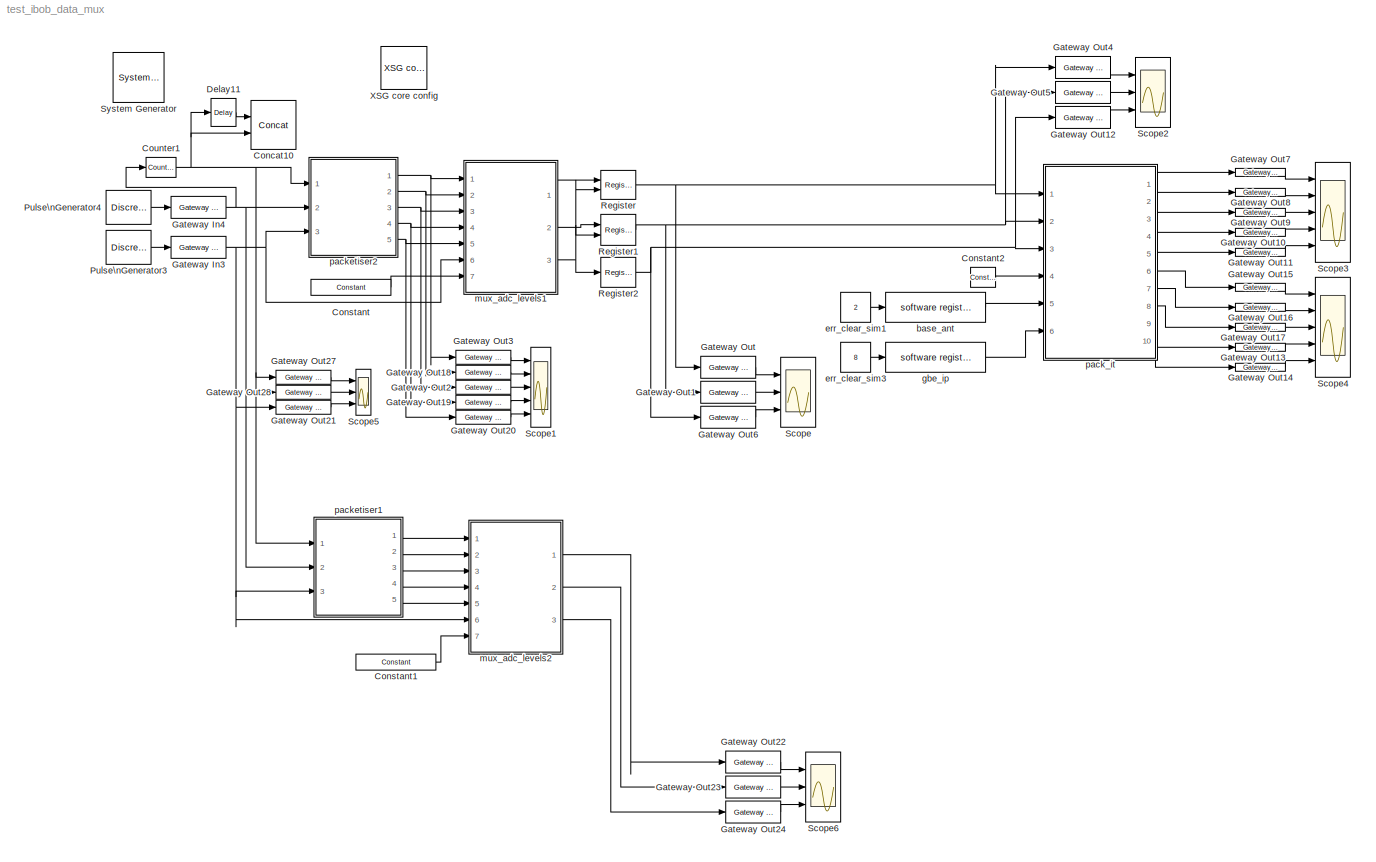
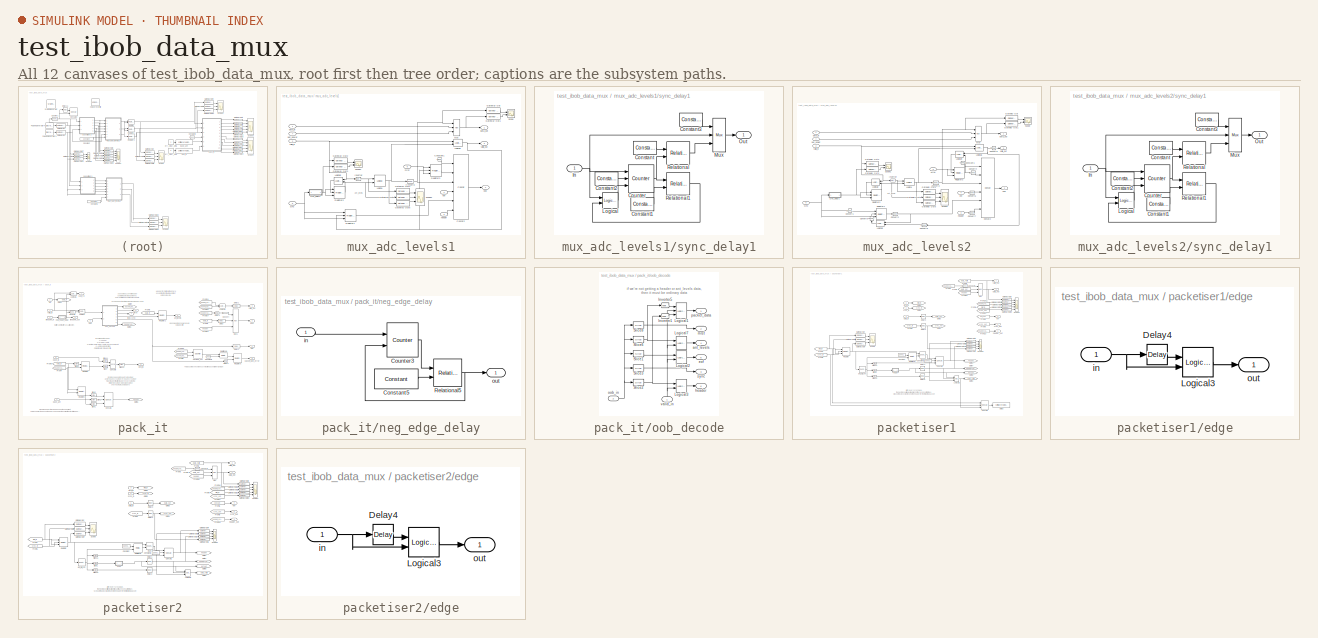
[diagram: thumbnail index - all 12 canvases of the model, root first then tree order]
MODEL test_ibob_data_mux
KIND model
BLOCK [Reference]  System Generator  REF=xbsIndex_r3/ System Generator
  AttributesFormatString = System\\nGenerator
  Ports = []
  ShowPortLabels = on
  SourceBlock = xbsIndex_r3/ System Generator
  SourceType = Xilinx System Generator
  Tag = genX
  UserData = DataTag0
  UserDataPersistent = on
  core_generation = According to Block Masks
  dbl_ovrd = According to Block Masks
  deprecated_control = off
  directory = ./cn_i_128w_2k_x_rev3_astro_lib/sysgen
  eval_field = 0
  incr_netlist = off
  package = ff1152
  part = xc2vp50
  run_coregen = off
  simulink_period = 1
  speed = -7
  synthesis_tool = XST
  sysclk_period = 5
  testbench = off
  trim_vbits = Everywhere in SubSystem
  xilinxfamily = Virtex2P
BLOCK [Reference] Concat10  REF=xbsIndex_r3/Concat
  Ports = [2, 1]
  SourceBlock = xbsIndex_r3/Concat
  SourceType = Xilinx Bus Concatenator
  dbl_ovrd = off
  explicit_period = off
  num_inputs = 2
  period = 1
BLOCK [Reference] Constant  REF=xbsIndex_r3/Constant
  Ports = [0, 1]
  SourceBlock = xbsIndex_r3/Constant
  SourceType = Xilinx Constant Block
  arith_type = Unsigned
  bin_pt = 0
  carry = CIN
  const = (2^64) -1
  dbl_ovrd = off
  equ = P=C
  explicit_period = on
  inp1 = P
  inp2 = PCIN>>17
  iostate = 0
  n_bits = 64
  opr = +
  opselect = C
  period = 1
BLOCK [Reference] Constant1  REF=xbsIndex_r3/Constant
  Ports = [0, 1]
  SourceBlock = xbsIndex_r3/Constant
  SourceType = Xilinx Constant Block
  arith_type = Unsigned
  bin_pt = 0
  carry = CIN
  const = (2^64) -1
  dbl_ovrd = off
  equ = P=C
  explicit_period = on
  inp1 = P
  inp2 = PCIN>>17
  iostate = 0
  n_bits = 64
  opr = +
  opselect = C
  period = 1
BLOCK [Reference] Constant2  REF=xbsIndex_r3/Constant
  Ports = [0, 1]
  SourceBlock = xbsIndex_r3/Constant
  SourceType = Xilinx Constant Block
  arith_type = Boolean
  bin_pt = 0
  carry = CIN
  const = 0
  dbl_ovrd = off
  equ = P=C
  explicit_period = on
  inp1 = P
  inp2 = PCIN>>17
  iostate = 0
  n_bits = 1
  opr = +
  opselect = C
  period = 1
BLOCK [Reference] Counter1  REF=xbsIndex_r3/Counter
  Ports = [1, 1]
  SourceBlock = xbsIndex_r3/Counter
  SourceType = Xilinx Counter Block
  arith_type = Unsigned
  bin_pt = 0
  cnt_by_val = 1
  cnt_to = Inf
  cnt_type = Count Limited
  dbl_ovrd = off
  en = off
  explicit_period = off
  gen_core = off
  load_pin = off
  n_bits = 64
  operation = Up
  period = 1
  rst = on
  show_param = off
  start_count = 0
  use_rpm = on
  xl_area = [0, 0, 0, 0, 0, 0, 0]
  xl_use_area = off
BLOCK [Reference] Delay11  REF=xbsIndex_r3/Delay
  Ports = [1, 1]
  SourceBlock = xbsIndex_r3/Delay
  SourceType = Xilinx Delay Block
  accept_only_valid = off
  dbl_ovrd = off
  en = off
  explicit_period = off
  init_zero = on
  latency = 1
  period = 1
  reg_retiming = on
  show_param = off
  xl_area = [0, 0, 0, 0, 0, 0, 0]
  xl_use_area = off
BLOCK [Reference] Gateway In3  REF=xbsIndex_r3/Gateway In
  LOCs = {}
  Ports = [1, 1]
  SourceBlock = xbsIndex_r3/Gateway In
  SourceType = Xilinx Gateway In
  arith_type = Boolean
  bin_pt = 0
  dbl_ovrd = off
  locs_specified = off
  n_bits = 1
  needs_fixed_name = off
  overflow = Wrap
  period = 1
  quantization = Truncate
  show_param = off
  timing_constraint = None
  xl_area = [0, 0, 0, 0, 0, 0, 0]
  xl_use_area = off
BLOCK [Reference] Gateway In4  REF=xbsIndex_r3/Gateway In
  LOCs = {}
  Ports = [1, 1]
  SourceBlock = xbsIndex_r3/Gateway In
  SourceType = Xilinx Gateway In
  arith_type = Boolean
  bin_pt = 0
  dbl_ovrd = off
  locs_specified = off
  n_bits = 1
  needs_fixed_name = off
  overflow = Wrap
  period = 1
  quantization = Truncate
  show_param = off
  timing_constraint = None
  xl_area = [0, 0, 0, 0, 0, 0, 0]
  xl_use_area = off
BLOCK [Reference] Gateway Out  REF=xbsIndex_r3/Gateway Out
  LOCs = {}
  Ports = [1, 1]
  SourceBlock = xbsIndex_r3/Gateway Out
  SourceType = Xilinx Gateway Out
  arith_type = Boolean
  bin_pt = 6
  hdl_port = on
  locs_specified = off
  nbits = 8
  needs_fixed_name = off
  output_type = Double
  overflow = Wrap
  quantization = Truncate
  show_param = off
  timing_constraint = None
  xl_area = [0, 0, 0, 0, 0, 0, 0]
  xl_use_area = off
BLOCK [Reference] Gateway Out1  REF=xbsIndex_r3/Gateway Out
  LOCs = {}
  Ports = [1, 1]
  SourceBlock = xbsIndex_r3/Gateway Out
  SourceType = Xilinx Gateway Out
  arith_type = Boolean
  bin_pt = 6
  hdl_port = on
  locs_specified = off
  nbits = 8
  needs_fixed_name = off
  output_type = Double
  overflow = Wrap
  quantization = Truncate
  show_param = off
  timing_constraint = None
  xl_area = [0, 0, 0, 0, 0, 0, 0]
  xl_use_area = off
BLOCK [Reference] Gateway Out10  REF=xbsIndex_r3/Gateway Out
  LOCs = {}
  Ports = [1, 1]
  SourceBlock = xbsIndex_r3/Gateway Out
  SourceType = Xilinx Gateway Out
  arith_type = Boolean
  bin_pt = 6
  hdl_port = on
  locs_specified = off
  nbits = 8
  needs_fixed_name = off
  output_type = Double
  overflow = Wrap
  quantization = Truncate
  show_param = off
  timing_constraint = None
  xl_area = [0, 0, 0, 0, 0, 0, 0]
  xl_use_area = off
BLOCK [Reference] Gateway Out11  REF=xbsIndex_r3/Gateway Out
  LOCs = {}
  Ports = [1, 1]
  SourceBlock = xbsIndex_r3/Gateway Out
  SourceType = Xilinx Gateway Out
  arith_type = Boolean
  bin_pt = 6
  hdl_port = on
  locs_specified = off
  nbits = 8
  needs_fixed_name = off
  output_type = Double
  overflow = Wrap
  quantization = Truncate
  show_param = off
  timing_constraint = None
  xl_area = [0, 0, 0, 0, 0, 0, 0]
  xl_use_area = off
BLOCK [Reference] Gateway Out12  REF=xbsIndex_r3/Gateway Out
  LOCs = {}
  Ports = [1, 1]
  SourceBlock = xbsIndex_r3/Gateway Out
  SourceType = Xilinx Gateway Out
  arith_type = Boolean
  bin_pt = 6
  hdl_port = on
  locs_specified = off
  nbits = 8
  needs_fixed_name = off
  output_type = Double
  overflow = Wrap
  quantization = Truncate
  show_param = off
  timing_constraint = None
  xl_area = [0, 0, 0, 0, 0, 0, 0]
  xl_use_area = off
BLOCK [Reference] Gateway Out13  REF=xbsIndex_r3/Gateway Out
  LOCs = {}
  Ports = [1, 1]
  SourceBlock = xbsIndex_r3/Gateway Out
  SourceType = Xilinx Gateway Out
  arith_type = Boolean
  bin_pt = 6
  hdl_port = on
  locs_specified = off
  nbits = 8
  needs_fixed_name = off
  output_type = Double
  overflow = Wrap
  quantization = Truncate
  show_param = off
  timing_constraint = None
  xl_area = [0, 0, 0, 0, 0, 0, 0]
  xl_use_area = off
BLOCK [Reference] Gateway Out14  REF=xbsIndex_r3/Gateway Out
  LOCs = {}
  Ports = [1, 1]
  SourceBlock = xbsIndex_r3/Gateway Out
  SourceType = Xilinx Gateway Out
  arith_type = Boolean
  bin_pt = 6
  hdl_port = on
  locs_specified = off
  nbits = 8
  needs_fixed_name = off
  output_type = Double
  overflow = Wrap
  quantization = Truncate
  show_param = off
  timing_constraint = None
  xl_area = [0, 0, 0, 0, 0, 0, 0]
  xl_use_area = off
BLOCK [Reference] Gateway Out15  REF=xbsIndex_r3/Gateway Out
  LOCs = {}
  Ports = [1, 1]
  SourceBlock = xbsIndex_r3/Gateway Out
  SourceType = Xilinx Gateway Out
  arith_type = Boolean
  bin_pt = 6
  hdl_port = on
  locs_specified = off
  nbits = 8
  needs_fixed_name = off
  output_type = Double
  overflow = Wrap
  quantization = Truncate
  show_param = off
  timing_constraint = None
  xl_area = [0, 0, 0, 0, 0, 0, 0]
  xl_use_area = off
BLOCK [Reference] Gateway Out16  REF=xbsIndex_r3/Gateway Out
  LOCs = {}
  Ports = [1, 1]
  SourceBlock = xbsIndex_r3/Gateway Out
  SourceType = Xilinx Gateway Out
  arith_type = Boolean
  bin_pt = 6
  hdl_port = on
  locs_specified = off
  nbits = 8
  needs_fixed_name = off
  output_type = Double
  overflow = Wrap
  quantization = Truncate
  show_param = off
  timing_constraint = None
  xl_area = [0, 0, 0, 0, 0, 0, 0]
  xl_use_area = off
BLOCK [Reference] Gateway Out17  REF=xbsIndex_r3/Gateway Out
  LOCs = {}
  Ports = [1, 1]
  SourceBlock = xbsIndex_r3/Gateway Out
  SourceType = Xilinx Gateway Out
  arith_type = Boolean
  bin_pt = 6
  hdl_port = on
  locs_specified = off
  nbits = 8
  needs_fixed_name = off
  output_type = Double
  overflow = Wrap
  quantization = Truncate
  show_param = off
  timing_constraint = None
  xl_area = [0, 0, 0, 0, 0, 0, 0]
  xl_use_area = off
BLOCK [Reference] Gateway Out18  REF=xbsIndex_r3/Gateway Out
  LOCs = {}
  Ports = [1, 1]
  SourceBlock = xbsIndex_r3/Gateway Out
  SourceType = Xilinx Gateway Out
  arith_type = Boolean
  bin_pt = 6
  hdl_port = on
  locs_specified = off
  nbits = 8
  needs_fixed_name = off
  output_type = Double
  overflow = Wrap
  quantization = Truncate
  show_param = off
  timing_constraint = None
  xl_area = [0, 0, 0, 0, 0, 0, 0]
  xl_use_area = off
BLOCK [Reference] Gateway Out19  REF=xbsIndex_r3/Gateway Out
  LOCs = {}
  Ports = [1, 1]
  SourceBlock = xbsIndex_r3/Gateway Out
  SourceType = Xilinx Gateway Out
  arith_type = Boolean
  bin_pt = 6
  hdl_port = on
  locs_specified = off
  nbits = 8
  needs_fixed_name = off
  output_type = Double
  overflow = Wrap
  quantization = Truncate
  show_param = off
  timing_constraint = None
  xl_area = [0, 0, 0, 0, 0, 0, 0]
  xl_use_area = off
BLOCK [Reference] Gateway Out2  REF=xbsIndex_r3/Gateway Out
  LOCs = {}
  Ports = [1, 1]
  SourceBlock = xbsIndex_r3/Gateway Out
  SourceType = Xilinx Gateway Out
  arith_type = Boolean
  bin_pt = 6
  hdl_port = on
  locs_specified = off
  nbits = 8
  needs_fixed_name = off
  output_type = Double
  overflow = Wrap
  quantization = Truncate
  show_param = off
  timing_constraint = None
  xl_area = [0, 0, 0, 0, 0, 0, 0]
  xl_use_area = off
BLOCK [Reference] Gateway Out20  REF=xbsIndex_r3/Gateway Out
  LOCs = {}
  Ports = [1, 1]
  SourceBlock = xbsIndex_r3/Gateway Out
  SourceType = Xilinx Gateway Out
  arith_type = Boolean
  bin_pt = 6
  hdl_port = on
  locs_specified = off
  nbits = 8
  needs_fixed_name = off
  output_type = Double
  overflow = Wrap
  quantization = Truncate
  show_param = off
  timing_constraint = None
  xl_area = [0, 0, 0, 0, 0, 0, 0]
  xl_use_area = off
BLOCK [Reference] Gateway Out21  REF=xbsIndex_r3/Gateway Out
  LOCs = {}
  Ports = [1, 1]
  SourceBlock = xbsIndex_r3/Gateway Out
  SourceType = Xilinx Gateway Out
  arith_type = Boolean
  bin_pt = 6
  hdl_port = on
  locs_specified = off
  nbits = 8
  needs_fixed_name = off
  output_type = Double
  overflow = Wrap
  quantization = Truncate
  show_param = off
  timing_constraint = None
  xl_area = [0, 0, 0, 0, 0, 0, 0]
  xl_use_area = off
BLOCK [Reference] Gateway Out22  REF=xbsIndex_r3/Gateway Out
  LOCs = {}
  Ports = [1, 1]
  SourceBlock = xbsIndex_r3/Gateway Out
  SourceType = Xilinx Gateway Out
  arith_type = Boolean
  bin_pt = 6
  hdl_port = on
  locs_specified = off
  nbits = 8
  needs_fixed_name = off
  output_type = Double
  overflow = Wrap
  quantization = Truncate
  show_param = off
  timing_constraint = None
  xl_area = [0, 0, 0, 0, 0, 0, 0]
  xl_use_area = off
BLOCK [Reference] Gateway Out23  REF=xbsIndex_r3/Gateway Out
  LOCs = {}
  Ports = [1, 1]
  SourceBlock = xbsIndex_r3/Gateway Out
  SourceType = Xilinx Gateway Out
  arith_type = Boolean
  bin_pt = 6
  hdl_port = on
  locs_specified = off
  nbits = 8
  needs_fixed_name = off
  output_type = Double
  overflow = Wrap
  quantization = Truncate
  show_param = off
  timing_constraint = None
  xl_area = [0, 0, 0, 0, 0, 0, 0]
  xl_use_area = off
BLOCK [Reference] Gateway Out24  REF=xbsIndex_r3/Gateway Out
  LOCs = {}
  Ports = [1, 1]
  SourceBlock = xbsIndex_r3/Gateway Out
  SourceType = Xilinx Gateway Out
  arith_type = Boolean
  bin_pt = 6
  hdl_port = on
  locs_specified = off
  nbits = 8
  needs_fixed_name = off
  output_type = Double
  overflow = Wrap
  quantization = Truncate
  show_param = off
  timing_constraint = None
  xl_area = [0, 0, 0, 0, 0, 0, 0]
  xl_use_area = off
BLOCK [Reference] Gateway Out27  REF=xbsIndex_r3/Gateway Out
  LOCs = {}
  Ports = [1, 1]
  SourceBlock = xbsIndex_r3/Gateway Out
  SourceType = Xilinx Gateway Out
  arith_type = Boolean
  bin_pt = 6
  hdl_port = on
  locs_specified = off
  nbits = 8
  needs_fixed_name = off
  output_type = Double
  overflow = Wrap
  quantization = Truncate
  show_param = off
  timing_constraint = None
  xl_area = [0, 0, 0, 0, 0, 0, 0]
  xl_use_area = off
BLOCK [Reference] Gateway Out28  REF=xbsIndex_r3/Gateway Out
  LOCs = {}
  Ports = [1, 1]
  SourceBlock = xbsIndex_r3/Gateway Out
  SourceType = Xilinx Gateway Out
  arith_type = Boolean
  bin_pt = 6
  hdl_port = on
  locs_specified = off
  nbits = 8
  needs_fixed_name = off
  output_type = Double
  overflow = Wrap
  quantization = Truncate
  show_param = off
  timing_constraint = None
  xl_area = [0, 0, 0, 0, 0, 0, 0]
  xl_use_area = off
BLOCK [Reference] Gateway Out3  REF=xbsIndex_r3/Gateway Out
  LOCs = {}
  Ports = [1, 1]
  SourceBlock = xbsIndex_r3/Gateway Out
  SourceType = Xilinx Gateway Out
  arith_type = Boolean
  bin_pt = 6
  hdl_port = on
  locs_specified = off
  nbits = 8
  needs_fixed_name = off
  output_type = Double
  overflow = Wrap
  quantization = Truncate
  show_param = off
  timing_constraint = None
  xl_area = [0, 0, 0, 0, 0, 0, 0]
  xl_use_area = off
BLOCK [Reference] Gateway Out4  REF=xbsIndex_r3/Gateway Out
  LOCs = {}
  Ports = [1, 1]
  SourceBlock = xbsIndex_r3/Gateway Out
  SourceType = Xilinx Gateway Out
  arith_type = Boolean
  bin_pt = 6
  hdl_port = on
  locs_specified = off
  nbits = 8
  needs_fixed_name = off
  output_type = Double
  overflow = Wrap
  quantization = Truncate
  show_param = off
  timing_constraint = None
  xl_area = [0, 0, 0, 0, 0, 0, 0]
  xl_use_area = off
BLOCK [Reference] Gateway Out5  REF=xbsIndex_r3/Gateway Out
  LOCs = {}
  Ports = [1, 1]
  SourceBlock = xbsIndex_r3/Gateway Out
  SourceType = Xilinx Gateway Out
  arith_type = Boolean
  bin_pt = 6
  hdl_port = on
  locs_specified = off
  nbits = 8
  needs_fixed_name = off
  output_type = Double
  overflow = Wrap
  quantization = Truncate
  show_param = off
  timing_constraint = None
  xl_area = [0, 0, 0, 0, 0, 0, 0]
  xl_use_area = off
BLOCK [Reference] Gateway Out6  REF=xbsIndex_r3/Gateway Out
  LOCs = {}
  Ports = [1, 1]
  SourceBlock = xbsIndex_r3/Gateway Out
  SourceType = Xilinx Gateway Out
  arith_type = Boolean
  bin_pt = 6
  hdl_port = on
  locs_specified = off
  nbits = 8
  needs_fixed_name = off
  output_type = Double
  overflow = Wrap
  quantization = Truncate
  show_param = off
  timing_constraint = None
  xl_area = [0, 0, 0, 0, 0, 0, 0]
  xl_use_area = off
BLOCK [Reference] Gateway Out7  REF=xbsIndex_r3/Gateway Out
  LOCs = {}
  Ports = [1, 1]
  SourceBlock = xbsIndex_r3/Gateway Out
  SourceType = Xilinx Gateway Out
  arith_type = Boolean
  bin_pt = 6
  hdl_port = on
  locs_specified = off
  nbits = 8
  needs_fixed_name = off
  output_type = Double
  overflow = Wrap
  quantization = Truncate
  show_param = off
  timing_constraint = None
  xl_area = [0, 0, 0, 0, 0, 0, 0]
  xl_use_area = off
BLOCK [Reference] Gateway Out8  REF=xbsIndex_r3/Gateway Out
  LOCs = {}
  Ports = [1, 1]
  SourceBlock = xbsIndex_r3/Gateway Out
  SourceType = Xilinx Gateway Out
  arith_type = Boolean
  bin_pt = 6
  hdl_port = on
  locs_specified = off
  nbits = 8
  needs_fixed_name = off
  output_type = Double
  overflow = Wrap
  quantization = Truncate
  show_param = off
  timing_constraint = None
  xl_area = [0, 0, 0, 0, 0, 0, 0]
  xl_use_area = off
BLOCK [Reference] Gateway Out9  REF=xbsIndex_r3/Gateway Out
  LOCs = {}
  Ports = [1, 1]
  SourceBlock = xbsIndex_r3/Gateway Out
  SourceType = Xilinx Gateway Out
  arith_type = Boolean
  bin_pt = 6
  hdl_port = on
  locs_specified = off
  nbits = 8
  needs_fixed_name = off
  output_type = Double
  overflow = Wrap
  quantization = Truncate
  show_param = off
  timing_constraint = None
  xl_area = [0, 0, 0, 0, 0, 0, 0]
  xl_use_area = off
BLOCK [DiscretePulseGenerator] Pulse\nGenerator3
  Period = 40960
  PhaseDelay = 128
  Ports = [0, 1]
BLOCK [DiscretePulseGenerator] Pulse\nGenerator4
  Period = 10240
  PhaseDelay = 150
  Ports = [0, 1]
BLOCK [Reference] Register  REF=xbsIndex_r3/Register
  Ports = [2, 1]
  SourceBlock = xbsIndex_r3/Register
  SourceType = Xilinx Register Block
  dbl_ovrd = off
  en = on
  explicit_period = on
  init = 0
  out_en = off
  period = 1
  reg_only_valid = off
  rst = off
  show_param = off
  xl_area = [0, 0, 0, 0, 0, 0, 0]
  xl_use_area = off
BLOCK [Reference] Register1  REF=xbsIndex_r3/Register
  Ports = [2, 1]
  SourceBlock = xbsIndex_r3/Register
  SourceType = Xilinx Register Block
  dbl_ovrd = off
  en = on
  explicit_period = on
  init = 0
  out_en = off
  period = 1
  reg_only_valid = off
  rst = off
  show_param = off
  xl_area = [0, 0, 0, 0, 0, 0, 0]
  xl_use_area = off
BLOCK [Reference] Register2  REF=xbsIndex_r3/Register
  Ports = [1, 1]
  SourceBlock = xbsIndex_r3/Register
  SourceType = Xilinx Register Block
  dbl_ovrd = off
  en = off
  explicit_period = on
  init = 0
  out_en = off
  period = 1
  reg_only_valid = off
  rst = off
  show_param = off
  xl_area = [0, 0, 0, 0, 0, 0, 0]
  xl_use_area = off
BLOCK [Scope] Scope
  DataFormat = StructureWithTime
  LimitDataPoints = off
  NumInputPorts = 3
  Ports = [3]
  YMax = 4.5e+023~1~5
  YMin = -1.67772e+007~0~-5
  ZoomMode = xonly
BLOCK [Scope] Scope1
  DataFormat = StructureWithTime
  LimitDataPoints = off
  NumInputPorts = 5
  Ports = [5]
  SaveName = packetizer_out
  SaveToWorkspace = on
  YMax = 1.9e+014~1~1~5~5
  YMin = 0~0~0~-5~-5
  ZoomMode = yonly
BLOCK [Scope] Scope2
  DataFormat = StructureWithTime
  LimitDataPoints = off
  NumInputPorts = 3
  Ports = [3]
  SaveName = ScopeData5
  YMax = 1.05~1~1
  YMin = 0.95~-1~-1
  ZoomMode = xonly
BLOCK [Scope] Scope3
  DataFormat = StructureWithTime
  LimitDataPoints = off
  NumInputPorts = 5
  Ports = [5]
  SaveName = ScopeData4
  YMax = 1~5000~1~3~1
  YMin = 0~0~0~0~0
  ZoomMode = xonly
BLOCK [Scope] Scope4
  DataFormat = StructureWithTime
  LimitDataPoints = off
  NumInputPorts = 5
  Ports = [5]
  SaveName = ScopeData9
  YMax = 1~5000~1~3~1
  YMin = 0~0~0~0~0
  ZoomMode = xonly
BLOCK [Scope] Scope5
  DataFormat = StructureWithTime
  LimitDataPoints = off
  NumInputPorts = 3
  Ports = [3]
  SaveName = ScopeData1
  YMax = 1800~1~1
  YMin = 0~0~0
  ZoomMode = yonly
BLOCK [Scope] Scope6
  DataFormat = StructureWithTime
  LimitDataPoints = off
  NumInputPorts = 3
  Ports = [3]
  SaveName = ScopeData10
  YMax = 4.5e+023~1~5
  YMin = -1.67772e+007~0~-5
  ZoomMode = xonly
BLOCK [Reference] XSG core config  REF=xps_library/XSG core config  (lib defined in mdl_00b5cec29cd0, mdl_02ab6ecaa3d1, +5 more)
  Ports = []
  ShowPortLabels = on
  SourceBlock = xps_library/XSG core config
  Tag = xps:xsg
  clk_rate = 100
  clk_src = sys_clk
  gpio_clk_bit_index = 0
  gpio_clk_io_group = iBOB:sma
  hw_sys = iBOB
  ibob_linux = off
  mpc_type = powerpc405
  sample_period = 1
  synthesis_tool = XST
BLOCK [Reference] base_ant  REF=xps_library/software register  (lib defined in mdl_00b5cec29cd0, mdl_02ab6ecaa3d1, +5 more)
  Ports = [1, 1]
  ShowPortLabels = on
  SourceBlock = xps_library/software register
  Tag = xps:sw_reg
  arith_type = Unsigned
  bin_pt = 0
  bitwidth = 32
  gw_name = test_ibob_data_mux_base_ant_user_data_out
  io_dir = From Processor
  sample_period = 1
BLOCK [Constant] err_clear_sim1
  Value = 2
BLOCK [Constant] err_clear_sim3
  Value = 8
BLOCK [Reference] gbe_ip  REF=xps_library/software register  (lib defined in mdl_00b5cec29cd0, mdl_02ab6ecaa3d1, +5 more)
  Ports = [1, 1]
  ShowPortLabels = on
  SourceBlock = xps_library/software register
  Tag = xps:sw_reg
  arith_type = Unsigned
  bin_pt = 0
  bitwidth = 32
  gw_name = test_ibob_data_mux_gbe_ip_user_data_out
  io_dir = From Processor
  sample_period = 1
BLOCK [SubSystem] mux_adc_levels1
  MaskEnableString = on
  MaskIconFrame = on
  MaskIconOpaque = on
  MaskIconRotate = none
  MaskIconUnits = autoscale
  MaskPromptString = Attempt to insert antenna levels how many clocks after sync?
  MaskStyleString = edit
  MaskToolTipString = on
  MaskTunableValueString = on
  MaskValueString = 2000
  MaskVariables = wait_time=@1;
  MaskVisibilityString = on
  MinAlgLoopOccurrences = off
  Ports = [7, 3]
  RTWSystemCode = Auto
  TreatAsAtomicUnit = off
BLOCK [Reference] mux_adc_levels1/Concat2  REF=xbsIndex_r3/Concat
  Ports = [6, 1]
  SourceBlock = xbsIndex_r3/Concat
  SourceType = Xilinx Bus Concatenator
  dbl_ovrd = off
  explicit_period = off
  num_inputs = 6
  period = 1
BLOCK [Reference] mux_adc_levels1/Constant1  REF=xbsIndex_r3/Constant
  Ports = [0, 1]
  SourceBlock = xbsIndex_r3/Constant
  SourceType = Xilinx Constant Block
  arith_type = Unsigned
  bin_pt = 0
  carry = CIN
  const = 0
  dbl_ovrd = off
  equ = P=C
  explicit_period = on
  inp1 = P
  inp2 = PCIN>>17
  iostate = 0
  n_bits = 3
  opr = +
  opselect = C
  period = 1
BLOCK [Reference] mux_adc_levels1/Convert3  REF=xbsIndex_r3/Convert
  Ports = [1, 1]
  SourceBlock = xbsIndex_r3/Convert
  SourceType = Xilinx Converter Block
  arith_type = Unsigned
  bin_pt = 0
  dbl_ovrd = off
  explicit_period = off
  inserted_by_tool = off
  latency = 0
  n_bits = 1
  overflow = Wrap
  period = 1
  pipeline = off
  quantization = Truncate
  show_param = off
  xl_area = [0, 0, 0, 0, 0, 0, 0]
  xl_use_area = off
BLOCK [Reference] mux_adc_levels1/Gateway Out  REF=xbsIndex_r3/Gateway Out
  LOCs = {}
  Ports = [1, 1]
  SourceBlock = xbsIndex_r3/Gateway Out
  SourceType = Xilinx Gateway Out
  arith_type = Boolean
  bin_pt = 6
  hdl_port = on
  locs_specified = off
  nbits = 8
  needs_fixed_name = off
  output_type = Double
  overflow = Wrap
  quantization = Truncate
  show_param = off
  timing_constraint = None
  xl_area = [0, 0, 0, 0, 0, 0, 0]
  xl_use_area = off
BLOCK [Reference] mux_adc_levels1/Gateway Out1  REF=xbsIndex_r3/Gateway Out
  LOCs = {}
  Ports = [1, 1]
  SourceBlock = xbsIndex_r3/Gateway Out
  SourceType = Xilinx Gateway Out
  arith_type = Boolean
  bin_pt = 6
  hdl_port = on
  locs_specified = off
  nbits = 8
  needs_fixed_name = off
  output_type = Double
  overflow = Wrap
  quantization = Truncate
  show_param = off
  timing_constraint = None
  xl_area = [0, 0, 0, 0, 0, 0, 0]
  xl_use_area = off
BLOCK [Reference] mux_adc_levels1/Gateway Out2  REF=xbsIndex_r3/Gateway Out
  LOCs = {}
  Ports = [1, 1]
  SourceBlock = xbsIndex_r3/Gateway Out
  SourceType = Xilinx Gateway Out
  arith_type = Boolean
  bin_pt = 6
  hdl_port = on
  locs_specified = off
  nbits = 8
  needs_fixed_name = off
  output_type = Double
  overflow = Wrap
  quantization = Truncate
  show_param = off
  timing_constraint = None
  xl_area = [0, 0, 0, 0, 0, 0, 0]
  xl_use_area = off
BLOCK [Reference] mux_adc_levels1/Gateway Out3  REF=xbsIndex_r3/Gateway Out
  LOCs = {}
  Ports = [1, 1]
  SourceBlock = xbsIndex_r3/Gateway Out
  SourceType = Xilinx Gateway Out
  arith_type = Boolean
  bin_pt = 6
  hdl_port = on
  locs_specified = off
  nbits = 8
  needs_fixed_name = off
  output_type = Double
  overflow = Wrap
  quantization = Truncate
  show_param = off
  timing_constraint = None
  xl_area = [0, 0, 0, 0, 0, 0, 0]
  xl_use_area = off
BLOCK [Reference] mux_adc_levels1/Gateway Out4  REF=xbsIndex_r3/Gateway Out
  LOCs = {}
  Ports = [1, 1]
  SourceBlock = xbsIndex_r3/Gateway Out
  SourceType = Xilinx Gateway Out
  arith_type = Boolean
  bin_pt = 6
  hdl_port = on
  locs_specified = off
  nbits = 8
  needs_fixed_name = off
  output_type = Double
  overflow = Wrap
  quantization = Truncate
  show_param = off
  timing_constraint = None
  xl_area = [0, 0, 0, 0, 0, 0, 0]
  xl_use_area = off
BLOCK [Reference] mux_adc_levels1/Gateway Out5  REF=xbsIndex_r3/Gateway Out
  LOCs = {}
  Ports = [1, 1]
  SourceBlock = xbsIndex_r3/Gateway Out
  SourceType = Xilinx Gateway Out
  arith_type = Boolean
  bin_pt = 6
  hdl_port = on
  locs_specified = off
  nbits = 8
  needs_fixed_name = off
  output_type = Double
  overflow = Wrap
  quantization = Truncate
  show_param = off
  timing_constraint = None
  xl_area = [0, 0, 0, 0, 0, 0, 0]
  xl_use_area = off
BLOCK [Reference] mux_adc_levels1/Gateway Out6  REF=xbsIndex_r3/Gateway Out
  LOCs = {}
  Ports = [1, 1]
  SourceBlock = xbsIndex_r3/Gateway Out
  SourceType = Xilinx Gateway Out
  arith_type = Boolean
  bin_pt = 6
  hdl_port = on
  locs_specified = off
  nbits = 8
  needs_fixed_name = off
  output_type = Double
  overflow = Wrap
  quantization = Truncate
  show_param = off
  timing_constraint = None
  xl_area = [0, 0, 0, 0, 0, 0, 0]
  xl_use_area = off
BLOCK [Reference] mux_adc_levels1/Inverter  REF=xbsIndex_r3/Inverter
  Ports = [1, 1]
  SourceBlock = xbsIndex_r3/Inverter
  SourceType = Xilinx Inverter
  dbl_ovrd = off
  en = off
  explicit_period = off
  latency = 0
  period = 1
  show_param = off
  xl_area = [0, 0, 0, 0, 0, 0, 0]
  xl_use_area = off
BLOCK [Reference] mux_adc_levels1/Logical  REF=xbsIndex_r3/Logical
  Ports = [2, 1]
  SourceBlock = xbsIndex_r3/Logical
  SourceType = Xilinx Logical Block
  align_bp = off
  arith_type = Unsigned
  bin_pt = 2
  dbl_ovrd = off
  en = off
  explicit_period = off
  inputs = 2
  latency = 0
  logical_function = AND
  n_bits = 8
  period = 1
  precision = Full
  show_param = off
  xl_area = [0, 0, 0, 0, 0, 0, 0]
  xl_use_area = off
BLOCK [Reference] mux_adc_levels1/Logical1  REF=xbsIndex_r3/Logical
  Ports = [2, 1]
  SourceBlock = xbsIndex_r3/Logical
  SourceType = Xilinx Logical Block
  align_bp = on
  arith_type = Unsigned
  bin_pt = 2
  dbl_ovrd = off
  en = off
  explicit_period = on
  inputs = 2
  latency = 0
  logical_function = OR
  n_bits = 8
  period = 1
  precision = Full
  show_param = off
  xl_area = [0, 0, 0, 0, 0, 0, 0]
  xl_use_area = off
BLOCK [Reference] mux_adc_levels1/Logical2  REF=xbsIndex_r3/Logical
  Ports = [2, 1]
  SourceBlock = xbsIndex_r3/Logical
  SourceType = Xilinx Logical Block
  align_bp = off
  arith_type = Unsigned
  bin_pt = 0
  dbl_ovrd = off
  en = off
  explicit_period = on
  inputs = 2
  latency = 0
  logical_function = AND
  n_bits = 1
  period = 1
  precision = Full
  show_param = off
  xl_area = [0, 0, 0, 0, 0, 0, 0]
  xl_use_area = off
BLOCK [Reference] mux_adc_levels1/Mux  REF=xbsIndex_r3/Mux
  Ports = [3, 1]
  SourceBlock = xbsIndex_r3/Mux
  SourceType = Xilinx Multiplexer Block
  arith_type = Signed  (2's comp)
  bin_pt = 2
  dbl_ovrd = off
  en = off
  explicit_period = on
  gen_core = off
  inputs = 2
  latency = 0
  mux_type = off
  n_bits = 8
  overflow = Wrap
  period = 1
  precision = Full
  quantization = Truncate
  show_param = off
  use_rpm = off
  xl_area = [0, 0, 0, 0, 0, 0, 0]
  xl_use_area = off
BLOCK [Reference] mux_adc_levels1/Register1  REF=xbsIndex_r3/Register
  Ports = [3, 1]
  SourceBlock = xbsIndex_r3/Register
  SourceType = Xilinx Register Block
  dbl_ovrd = off
  en = on
  explicit_period = on
  init = 0
  out_en = off
  period = 1
  reg_only_valid = off
  rst = on
  show_param = off
  xl_area = [0, 0, 0, 0, 0, 0, 0]
  xl_use_area = off
BLOCK [Reference] mux_adc_levels1/Register2  REF=xbsIndex_r3/Register
  Ports = [3, 1]
  SourceBlock = xbsIndex_r3/Register
  SourceType = Xilinx Register Block
  dbl_ovrd = off
  en = on
  explicit_period = on
  init = 0
  out_en = off
  period = 1
  reg_only_valid = off
  rst = on
  show_param = off
  xl_area = [0, 0, 0, 0, 0, 0, 0]
  xl_use_area = off
BLOCK [Reference] mux_adc_levels1/Register3  REF=xbsIndex_r3/Register
  Ports = [3, 1]
  SourceBlock = xbsIndex_r3/Register
  SourceType = Xilinx Register Block
  dbl_ovrd = off
  en = on
  explicit_period = on
  init = 0
  out_en = off
  period = 1
  reg_only_valid = off
  rst = on
  show_param = off
  xl_area = [0, 0, 0, 0, 0, 0, 0]
  xl_use_area = off
BLOCK [Scope] mux_adc_levels1/Scope
  DataFormat = StructureWithTime
  LimitDataPoints = off
  NumInputPorts = 2
  Ports = [2]
  SaveName = ScopeData3
  YMax = 2~1.7e+023
  YMin = 0~-1e+022
  ZoomMode = xonly
BLOCK [Scope] mux_adc_levels1/Scope1
  DataFormat = StructureWithTime
  LimitDataPoints = off
  NumInputPorts = 2
  Ports = [2]
  SaveName = ScopeData2
  YMax = 2~1.7e+023
  YMin = 0~-1e+022
  ZoomMode = xonly
BLOCK [Scope] mux_adc_levels1/Scope2
  DataFormat = StructureWithTime
  LimitDataPoints = off
  NumInputPorts = 3
  Ports = [3]
  SaveName = ScopeData11
  YMax = 4.5e+023~1~5
  YMin = -1.67772e+007~0~-5
  ZoomMode = xonly
BLOCK [Inport] mux_adc_levels1/adc_power
  IconDisplay = Port number
  LatchInput = off
  Port = 7
BLOCK [Inport] mux_adc_levels1/data_in
  IconDisplay = Port number
  LatchInput = off
  Port = 1
BLOCK [Outport] mux_adc_levels1/data_out
  BusOutputAsStruct = off
  IconDisplay = Port number
BLOCK [Inport] mux_adc_levels1/eof
  IconDisplay = Port number
  LatchInput = off
  Port = 4
BLOCK [Inport] mux_adc_levels1/header
  IconDisplay = Port number
  LatchInput = off
  Port = 3
BLOCK [Inport] mux_adc_levels1/mrst
  IconDisplay = Port number
  LatchInput = off
  Port = 6
BLOCK [Outport] mux_adc_levels1/oob
  BusOutputAsStruct = off
  IconDisplay = Port number
  Port = 2
BLOCK [Inport] mux_adc_levels1/sync
  IconDisplay = Port number
  LatchInput = off
  Port = 5
BLOCK [SubSystem] mux_adc_levels1/sync_delay1
  MaskDescription = Delay an infrequent boolean pulse by the specified number of clocks.
  MaskDisplay = fprintf('Z^-%d', DelayLen)
  MaskEnableString = on
  MaskHelp = eval('xlWeb([getenv(''MLIB_ROOT''), ''<path>''])')
  MaskIconFrame = on
  MaskIconOpaque = on
  MaskIconRotate = none
  MaskIconUnits = autoscale
  MaskInitialization = BitWidth = max(2, ceil(log2(DelayLen+1)));\nUseCounter = 1;\nif DelayLen == 0,\n	UseCounter = 0;\nend
  MaskPromptString = Delay Length:
  MaskSelfModifiable = on
  MaskStyleString = edit
  MaskToolTipString = on
  MaskTunableValueString = on
  MaskType = sync_delay
  MaskValueString = wait_time
  MaskVariables = DelayLen=@1;
  MaskVisibilityString = on
  MinAlgLoopOccurrences = off
  Ports = [1, 1]
  RTWSystemCode = Auto
  TreatAsAtomicUnit = off
BLOCK [Reference] mux_adc_levels1/sync_delay1/Constant  REF=xbsIndex_r3/Constant
  Ports = [0, 1]
  SourceBlock = xbsIndex_r3/Constant
  SourceType = Xilinx Constant Block
  arith_type = Unsigned
  bin_pt = 0
  carry = CIN
  const = 1
  dbl_ovrd = off
  equ = P=C
  explicit_period = on
  inp1 = P
  inp2 = PCIN>>17
  iostate = 0
  n_bits = BitWidth
  opr = +
  opselect = C
  period = 1
BLOCK [Reference] mux_adc_levels1/sync_delay1/Constant1  REF=xbsIndex_r3/Constant
  Ports = [0, 1]
  SourceBlock = xbsIndex_r3/Constant
  SourceType = Xilinx Constant Block
  arith_type = Unsigned
  bin_pt = 0
  carry = CIN
  const = 0
  dbl_ovrd = off
  equ = P=C
  explicit_period = on
  inp1 = P
  inp2 = PCIN>>17
  iostate = 0
  n_bits = BitWidth
  opr = +
  opselect = C
  period = 1
BLOCK [Reference] mux_adc_levels1/sync_delay1/Constant2  REF=xbsIndex_r3/Constant
  Ports = [0, 1]
  SourceBlock = xbsIndex_r3/Constant
  SourceType = Xilinx Constant Block
  arith_type = Unsigned
  bin_pt = 0
  carry = CIN
  const = DelayLen
  dbl_ovrd = off
  equ = P=C
  explicit_period = on
  inp1 = P
  inp2 = PCIN>>17
  iostate = 0
  n_bits = BitWidth
  opr = +
  opselect = C
  period = 1
BLOCK [Reference] mux_adc_levels1/sync_delay1/Constant3  REF=xbsIndex_r3/Constant
  Ports = [0, 1]
  SourceBlock = xbsIndex_r3/Constant
  SourceType = Xilinx Constant Block
  arith_type = Unsigned
  bin_pt = 0
  carry = CIN
  const = UseCounter
  dbl_ovrd = off
  equ = P=C
  explicit_period = on
  inp1 = P
  inp2 = PCIN>>17
  iostate = 0
  n_bits = 1
  opr = +
  opselect = C
  period = 1
BLOCK [Reference] mux_adc_levels1/sync_delay1/Counter  REF=xbsIndex_r3/Counter
  Ports = [3, 1]
  SourceBlock = xbsIndex_r3/Counter
  SourceType = Xilinx Counter Block
  arith_type = Unsigned
  bin_pt = 0
  cnt_by_val = 1
  cnt_to = Inf
  cnt_type = Free Running
  dbl_ovrd = off
  en = on
  explicit_period = on
  gen_core = off
  load_pin = on
  n_bits = BitWidth
  operation = Down
  period = 1
  rst = off
  show_param = off
  start_count = 0
  use_rpm = on
  xl_area = [0, 0, 0, 0, 0, 0, 0]
  xl_use_area = off
BLOCK [Inport] mux_adc_levels1/sync_delay1/In
  IconDisplay = Port number
  LatchInput = off
  Port = 1
BLOCK [Reference] mux_adc_levels1/sync_delay1/Logical  REF=xbsIndex_r3/Logical
  Ports = [2, 1]
  SourceBlock = xbsIndex_r3/Logical
  SourceType = Xilinx Logical Block
  align_bp = on
  arith_type = Unsigned
  bin_pt = 2
  dbl_ovrd = off
  en = off
  explicit_period = on
  inputs = 2
  latency = 0
  logical_function = OR
  n_bits = 8
  period = 1
  precision = Full
  show_param = off
  xl_area = [0, 0, 0, 0, 0, 0, 0]
  xl_use_area = off
BLOCK [Reference] mux_adc_levels1/sync_delay1/Mux  REF=xbsIndex_r3/Mux
  Ports = [3, 1]
  SourceBlock = xbsIndex_r3/Mux
  SourceType = Xilinx Multiplexer Block
  arith_type = Signed  (2's comp)
  bin_pt = 2
  dbl_ovrd = off
  en = off
  explicit_period = off
  gen_core = off
  inputs = 2
  latency = 0
  mux_type = off
  n_bits = 8
  overflow = Wrap
  period = 1
  precision = Full
  quantization = Truncate
  show_param = off
  use_rpm = off
  xl_area = [0, 0, 0, 0, 0, 0, 0]
  xl_use_area = off
BLOCK [Outport] mux_adc_levels1/sync_delay1/Out
  BusOutputAsStruct = off
  IconDisplay = Port number
BLOCK [Reference] mux_adc_levels1/sync_delay1/Relational  REF=xbsIndex_r3/Relational
  Ports = [2, 1]
  SourceBlock = xbsIndex_r3/Relational
  SourceType = Xilinx Relational Block
  dbl_ovrd = off
  en = off
  explicit_period = off
  latency = 0
  mode = a=b
  period = 1
  show_param = off
  xl_area = [0, 0, 0, 0, 0, 0, 0]
  xl_use_area = off
BLOCK [Reference] mux_adc_levels1/sync_delay1/Relational1  REF=xbsIndex_r3/Relational
  Ports = [2, 1]
  SourceBlock = xbsIndex_r3/Relational
  SourceType = Xilinx Relational Block
  dbl_ovrd = off
  en = off
  explicit_period = on
  latency = 0
  mode = a!=b
  period = 1
  show_param = off
  xl_area = [0, 0, 0, 0, 0, 0, 0]
  xl_use_area = off
BLOCK [Inport] mux_adc_levels1/valid_in
  IconDisplay = Port number
  LatchInput = off
  Port = 2
BLOCK [Outport] mux_adc_levels1/valid_out
  BusOutputAsStruct = off
  IconDisplay = Port number
  Port = 3
BLOCK [SubSystem] mux_adc_levels2
  MaskEnableString = on
  MaskIconFrame = on
  MaskIconOpaque = on
  MaskIconRotate = none
  MaskIconUnits = autoscale
  MaskPromptString = Attempt to insert antenna levels how many clocks after sync?
  MaskStyleString = edit
  MaskToolTipString = on
  MaskTunableValueString = on
  MaskValueString = 2000
  MaskVariables = wait_time=@1;
  MaskVisibilityString = on
  MinAlgLoopOccurrences = off
  Ports = [7, 3]
  RTWSystemCode = Auto
  TreatAsAtomicUnit = off
BLOCK [Reference] mux_adc_levels2/Concat2  REF=xbsIndex_r3/Concat
  Ports = [6, 1]
  SourceBlock = xbsIndex_r3/Concat
  SourceType = Xilinx Bus Concatenator
  dbl_ovrd = off
  explicit_period = off
  num_inputs = 6
  period = 1
BLOCK [Reference] mux_adc_levels2/Constant1  REF=xbsIndex_r3/Constant
  Ports = [0, 1]
  SourceBlock = xbsIndex_r3/Constant
  SourceType = Xilinx Constant Block
  arith_type = Unsigned
  bin_pt = 0
  carry = CIN
  const = 0
  dbl_ovrd = off
  equ = P=C
  explicit_period = on
  inp1 = P
  inp2 = PCIN>>17
  iostate = 0
  n_bits = 3
  opr = +
  opselect = C
  period = 1
BLOCK [Reference] mux_adc_levels2/Convert1  REF=xbsIndex_r3/Convert
  Ports = [1, 1]
  SourceBlock = xbsIndex_r3/Convert
  SourceType = Xilinx Converter Block
  arith_type = Unsigned
  bin_pt = 0
  dbl_ovrd = off
  explicit_period = off
  inserted_by_tool = off
  latency = 0
  n_bits = 1
  overflow = Wrap
  period = 1
  pipeline = off
  quantization = Truncate
  show_param = off
  xl_area = [0, 0, 0, 0, 0, 0, 0]
  xl_use_area = off
BLOCK [Reference] mux_adc_levels2/Convert2  REF=xbsIndex_r3/Convert
  Ports = [1, 1]
  SourceBlock = xbsIndex_r3/Convert
  SourceType = Xilinx Converter Block
  arith_type = Unsigned
  bin_pt = 0
  dbl_ovrd = off
  explicit_period = off
  inserted_by_tool = off
  latency = 0
  n_bits = 1
  overflow = Wrap
  period = 1
  pipeline = off
  quantization = Truncate
  show_param = off
  xl_area = [0, 0, 0, 0, 0, 0, 0]
  xl_use_area = off
BLOCK [Reference] mux_adc_levels2/Convert3  REF=xbsIndex_r3/Convert
  Ports = [1, 1]
  SourceBlock = xbsIndex_r3/Convert
  SourceType = Xilinx Converter Block
  arith_type = Unsigned
  bin_pt = 0
  dbl_ovrd = off
  explicit_period = off
  inserted_by_tool = off
  latency = 0
  n_bits = 1
  overflow = Wrap
  period = 1
  pipeline = off
  quantization = Truncate
  show_param = off
  xl_area = [0, 0, 0, 0, 0, 0, 0]
  xl_use_area = off
BLOCK [Reference] mux_adc_levels2/Convert4  REF=xbsIndex_r3/Convert
  Ports = [1, 1]
  SourceBlock = xbsIndex_r3/Convert
  SourceType = Xilinx Converter Block
  arith_type = Unsigned
  bin_pt = 0
  dbl_ovrd = off
  explicit_period = off
  inserted_by_tool = off
  latency = 0
  n_bits = 1
  overflow = Wrap
  period = 1
  pipeline = off
  quantization = Truncate
  show_param = off
  xl_area = [0, 0, 0, 0, 0, 0, 0]
  xl_use_area = off
BLOCK [Reference] mux_adc_levels2/Convert5  REF=xbsIndex_r3/Convert
  Ports = [1, 1]
  SourceBlock = xbsIndex_r3/Convert
  SourceType = Xilinx Converter Block
  arith_type = Unsigned
  bin_pt = 0
  dbl_ovrd = off
  explicit_period = off
  inserted_by_tool = off
  latency = 0
  n_bits = 1
  overflow = Wrap
  period = 1
  pipeline = off
  quantization = Truncate
  show_param = off
  xl_area = [0, 0, 0, 0, 0, 0, 0]
  xl_use_area = off
BLOCK [Reference] mux_adc_levels2/Convert6  REF=xbsIndex_r3/Convert
  Ports = [1, 1]
  SourceBlock = xbsIndex_r3/Convert
  SourceType = Xilinx Converter Block
  arith_type = Boolean
  bin_pt = 0
  dbl_ovrd = off
  explicit_period = off
  inserted_by_tool = off
  latency = 0
  n_bits = 1
  overflow = Wrap
  period = 1
  pipeline = off
  quantization = Truncate
  show_param = off
  xl_area = [0, 0, 0, 0, 0, 0, 0]
  xl_use_area = off
BLOCK [Reference] mux_adc_levels2/Convert7  REF=xbsIndex_r3/Convert
  Ports = [1, 1]
  SourceBlock = xbsIndex_r3/Convert
  SourceType = Xilinx Converter Block
  arith_type = Unsigned
  bin_pt = 0
  dbl_ovrd = off
  explicit_period = off
  inserted_by_tool = off
  latency = 0
  n_bits = 1
  overflow = Wrap
  period = 1
  pipeline = off
  quantization = Truncate
  show_param = off
  xl_area = [0, 0, 0, 0, 0, 0, 0]
  xl_use_area = off
BLOCK [Reference] mux_adc_levels2/Convert8  REF=xbsIndex_r3/Convert
  Ports = [1, 1]
  SourceBlock = xbsIndex_r3/Convert
  SourceType = Xilinx Converter Block
  arith_type = Unsigned
  bin_pt = 0
  dbl_ovrd = off
  explicit_period = off
  inserted_by_tool = off
  latency = 0
  n_bits = 1
  overflow = Wrap
  period = 1
  pipeline = off
  quantization = Truncate
  show_param = off
  xl_area = [0, 0, 0, 0, 0, 0, 0]
  xl_use_area = off
BLOCK [Reference] mux_adc_levels2/Convert9  REF=xbsIndex_r3/Convert
  Ports = [1, 1]
  SourceBlock = xbsIndex_r3/Convert
  SourceType = Xilinx Converter Block
  arith_type = Boolean
  bin_pt = 0
  dbl_ovrd = off
  explicit_period = off
  inserted_by_tool = off
  latency = 0
  n_bits = 1
  overflow = Wrap
  period = 1
  pipeline = off
  quantization = Truncate
  show_param = off
  xl_area = [0, 0, 0, 0, 0, 0, 0]
  xl_use_area = off
BLOCK [Reference] mux_adc_levels2/Gateway Out  REF=xbsIndex_r3/Gateway Out
  LOCs = {}
  Ports = [1, 1]
  SourceBlock = xbsIndex_r3/Gateway Out
  SourceType = Xilinx Gateway Out
  arith_type = Boolean
  bin_pt = 6
  hdl_port = on
  locs_specified = off
  nbits = 8
  needs_fixed_name = off
  output_type = Double
  overflow = Wrap
  quantization = Truncate
  show_param = off
  timing_constraint = None
  xl_area = [0, 0, 0, 0, 0, 0, 0]
  xl_use_area = off
BLOCK [Reference] mux_adc_levels2/Gateway Out1  REF=xbsIndex_r3/Gateway Out
  LOCs = {}
  Ports = [1, 1]
  SourceBlock = xbsIndex_r3/Gateway Out
  SourceType = Xilinx Gateway Out
  arith_type = Boolean
  bin_pt = 6
  hdl_port = on
  locs_specified = off
  nbits = 8
  needs_fixed_name = off
  output_type = Double
  overflow = Wrap
  quantization = Truncate
  show_param = off
  timing_constraint = None
  xl_area = [0, 0, 0, 0, 0, 0, 0]
  xl_use_area = off
BLOCK [Reference] mux_adc_levels2/Gateway Out2  REF=xbsIndex_r3/Gateway Out
  LOCs = {}
  Ports = [1, 1]
  SourceBlock = xbsIndex_r3/Gateway Out
  SourceType = Xilinx Gateway Out
  arith_type = Boolean
  bin_pt = 6
  hdl_port = on
  locs_specified = off
  nbits = 8
  needs_fixed_name = off
  output_type = Double
  overflow = Wrap
  quantization = Truncate
  show_param = off
  timing_constraint = None
  xl_area = [0, 0, 0, 0, 0, 0, 0]
  xl_use_area = off
BLOCK [Reference] mux_adc_levels2/Gateway Out3  REF=xbsIndex_r3/Gateway Out
  LOCs = {}
  Ports = [1, 1]
  SourceBlock = xbsIndex_r3/Gateway Out
  SourceType = Xilinx Gateway Out
  arith_type = Boolean
  bin_pt = 6
  hdl_port = on
  locs_specified = off
  nbits = 8
  needs_fixed_name = off
  output_type = Double
  overflow = Wrap
  quantization = Truncate
  show_param = off
  timing_constraint = None
  xl_area = [0, 0, 0, 0, 0, 0, 0]
  xl_use_area = off
BLOCK [Reference] mux_adc_levels2/Gateway Out4  REF=xbsIndex_r3/Gateway Out
  LOCs = {}
  Ports = [1, 1]
  SourceBlock = xbsIndex_r3/Gateway Out
  SourceType = Xilinx Gateway Out
  arith_type = Boolean
  bin_pt = 6
  hdl_port = on
  locs_specified = off
  nbits = 8
  needs_fixed_name = off
  output_type = Double
  overflow = Wrap
  quantization = Truncate
  show_param = off
  timing_constraint = None
  xl_area = [0, 0, 0, 0, 0, 0, 0]
  xl_use_area = off
BLOCK [Reference] mux_adc_levels2/Gateway Out5  REF=xbsIndex_r3/Gateway Out
  LOCs = {}
  Ports = [1, 1]
  SourceBlock = xbsIndex_r3/Gateway Out
  SourceType = Xilinx Gateway Out
  arith_type = Boolean
  bin_pt = 6
  hdl_port = on
  locs_specified = off
  nbits = 8
  needs_fixed_name = off
  output_type = Double
  overflow = Wrap
  quantization = Truncate
  show_param = off
  timing_constraint = None
  xl_area = [0, 0, 0, 0, 0, 0, 0]
  xl_use_area = off
BLOCK [Reference] mux_adc_levels2/Gateway Out6  REF=xbsIndex_r3/Gateway Out
  LOCs = {}
  Ports = [1, 1]
  SourceBlock = xbsIndex_r3/Gateway Out
  SourceType = Xilinx Gateway Out
  arith_type = Boolean
  bin_pt = 6
  hdl_port = on
  locs_specified = off
  nbits = 8
  needs_fixed_name = off
  output_type = Double
  overflow = Wrap
  quantization = Truncate
  show_param = off
  timing_constraint = None
  xl_area = [0, 0, 0, 0, 0, 0, 0]
  xl_use_area = off
BLOCK [Reference] mux_adc_levels2/Inverter  REF=xbsIndex_r3/Inverter
  Ports = [1, 1]
  SourceBlock = xbsIndex_r3/Inverter
  SourceType = Xilinx Inverter
  dbl_ovrd = off
  en = off
  explicit_period = off
  latency = 0
  period = 1
  show_param = off
  xl_area = [0, 0, 0, 0, 0, 0, 0]
  xl_use_area = off
BLOCK [Reference] mux_adc_levels2/Logical  REF=xbsIndex_r3/Logical
  Ports = [2, 1]
  SourceBlock = xbsIndex_r3/Logical
  SourceType = Xilinx Logical Block
  align_bp = off
  arith_type = Unsigned
  bin_pt = 2
  dbl_ovrd = off
  en = off
  explicit_period = off
  inputs = 2
  latency = 0
  logical_function = AND
  n_bits = 8
  period = 1
  precision = Full
  show_param = off
  xl_area = [0, 0, 0, 0, 0, 0, 0]
  xl_use_area = off
BLOCK [Reference] mux_adc_levels2/Logical1  REF=xbsIndex_r3/Logical
  Ports = [2, 1]
  SourceBlock = xbsIndex_r3/Logical
  SourceType = Xilinx Logical Block
  align_bp = on
  arith_type = Unsigned
  bin_pt = 2
  dbl_ovrd = off
  en = off
  explicit_period = on
  inputs = 2
  latency = 0
  logical_function = OR
  n_bits = 8
  period = 1
  precision = Full
  show_param = off
  xl_area = [0, 0, 0, 0, 0, 0, 0]
  xl_use_area = off
BLOCK [Reference] mux_adc_levels2/Logical2  REF=xbsIndex_r3/Logical
  Ports = [2, 1]
  SourceBlock = xbsIndex_r3/Logical
  SourceType = Xilinx Logical Block
  align_bp = off
  arith_type = Unsigned
  bin_pt = 0
  dbl_ovrd = off
  en = off
  explicit_period = on
  inputs = 2
  latency = 0
  logical_function = AND
  n_bits = 1
  period = 1
  precision = Full
  show_param = off
  xl_area = [0, 0, 0, 0, 0, 0, 0]
  xl_use_area = off
BLOCK [Reference] mux_adc_levels2/Logical3  REF=xbsIndex_r3/Logical
  Ports = [2, 1]
  SourceBlock = xbsIndex_r3/Logical
  SourceType = Xilinx Logical Block
  align_bp = off
  arith_type = Unsigned
  bin_pt = 0
  dbl_ovrd = off
  en = off
  explicit_period = on
  inputs = 2
  latency = 0
  logical_function = AND
  n_bits = 1
  period = 1
  precision = Full
  show_param = off
  xl_area = [0, 0, 0, 0, 0, 0, 0]
  xl_use_area = off
BLOCK [Reference] mux_adc_levels2/Logical4  REF=xbsIndex_r3/Logical
  Ports = [2, 1]
  SourceBlock = xbsIndex_r3/Logical
  SourceType = Xilinx Logical Block
  align_bp = off
  arith_type = Unsigned
  bin_pt = 0
  dbl_ovrd = off
  en = off
  explicit_period = on
  inputs = 2
  latency = 0
  logical_function = AND
  n_bits = 1
  period = 1
  precision = Full
  show_param = off
  xl_area = [0, 0, 0, 0, 0, 0, 0]
  xl_use_area = off
BLOCK [Reference] mux_adc_levels2/Mux  REF=xbsIndex_r3/Mux
  Ports = [3, 1]
  SourceBlock = xbsIndex_r3/Mux
  SourceType = Xilinx Multiplexer Block
  arith_type = Signed  (2's comp)
  bin_pt = 2
  dbl_ovrd = off
  en = off
  explicit_period = on
  gen_core = off
  inputs = 2
  latency = 0
  mux_type = off
  n_bits = 8
  overflow = Wrap
  period = 1
  precision = Full
  quantization = Truncate
  show_param = off
  use_rpm = off
  xl_area = [0, 0, 0, 0, 0, 0, 0]
  xl_use_area = off
BLOCK [Reference] mux_adc_levels2/Register1  REF=xbsIndex_r3/Register
  Ports = [3, 1]
  SourceBlock = xbsIndex_r3/Register
  SourceType = Xilinx Register Block
  dbl_ovrd = off
  en = on
  explicit_period = on
  init = 0
  out_en = off
  period = 1
  reg_only_valid = off
  rst = on
  show_param = off
  xl_area = [0, 0, 0, 0, 0, 0, 0]
  xl_use_area = off
BLOCK [Reference] mux_adc_levels2/Register2  REF=xbsIndex_r3/Register
  Ports = [3, 1]
  SourceBlock = xbsIndex_r3/Register
  SourceType = Xilinx Register Block
  dbl_ovrd = off
  en = on
  explicit_period = on
  init = 0
  out_en = off
  period = 1
  reg_only_valid = off
  rst = on
  show_param = off
  xl_area = [0, 0, 0, 0, 0, 0, 0]
  xl_use_area = off
BLOCK [Reference] mux_adc_levels2/Register3  REF=xbsIndex_r3/Register
  Ports = [3, 1]
  SourceBlock = xbsIndex_r3/Register
  SourceType = Xilinx Register Block
  dbl_ovrd = off
  en = on
  explicit_period = on
  init = 0
  out_en = off
  period = 1
  reg_only_valid = off
  rst = on
  show_param = off
  xl_area = [0, 0, 0, 0, 0, 0, 0]
  xl_use_area = off
BLOCK [Scope] mux_adc_levels2/Scope
  DataFormat = StructureWithTime
  LimitDataPoints = off
  NumInputPorts = 2
  Ports = [2]
  SaveName = ScopeData3
  YMax = 2~1.7e+023
  YMin = 0~-1e+022
  ZoomMode = xonly
BLOCK [Scope] mux_adc_levels2/Scope1
  DataFormat = StructureWithTime
  LimitDataPoints = off
  NumInputPorts = 2
  Ports = [2]
  SaveName = ScopeData2
  YMax = 2~1.7e+023
  YMin = 0~-1e+022
  ZoomMode = xonly
BLOCK [Scope] mux_adc_levels2/Scope2
  DataFormat = StructureWithTime
  LimitDataPoints = off
  NumInputPorts = 3
  Ports = [3]
  SaveName = ScopeData11
  YMax = 4.5e+023~1~5
  YMin = -1.67772e+007~0~-5
  ZoomMode = xonly
BLOCK [Inport] mux_adc_levels2/adc_power
  IconDisplay = Port number
  LatchInput = off
  Port = 7
BLOCK [Inport] mux_adc_levels2/data_in
  IconDisplay = Port number
  LatchInput = off
  Port = 1
BLOCK [Outport] mux_adc_levels2/data_out
  BusOutputAsStruct = off
  IconDisplay = Port number
BLOCK [Inport] mux_adc_levels2/eof
  IconDisplay = Port number
  LatchInput = off
  Port = 4
BLOCK [Inport] mux_adc_levels2/header
  IconDisplay = Port number
  LatchInput = off
  Port = 3
BLOCK [Inport] mux_adc_levels2/mrst
  IconDisplay = Port number
  LatchInput = off
  Port = 6
BLOCK [Outport] mux_adc_levels2/oob
  BusOutputAsStruct = off
  IconDisplay = Port number
  Port = 2
BLOCK [Inport] mux_adc_levels2/sync
  IconDisplay = Port number
  LatchInput = off
  Port = 5
BLOCK [SubSystem] mux_adc_levels2/sync_delay1
  MaskDescription = Delay an infrequent boolean pulse by the specified number of clocks.
  MaskDisplay = fprintf('Z^-%d', DelayLen)
  MaskEnableString = on
  MaskHelp = eval('xlWeb([getenv(''MLIB_ROOT''), ''<path>''])')
  MaskIconFrame = on
  MaskIconOpaque = on
  MaskIconRotate = none
  MaskIconUnits = autoscale
  MaskInitialization = BitWidth = max(2, ceil(log2(DelayLen+1)));\nUseCounter = 1;\nif DelayLen == 0,\n	UseCounter = 0;\nend
  MaskPromptString = Delay Length:
  MaskSelfModifiable = on
  MaskStyleString = edit
  MaskToolTipString = on
  MaskTunableValueString = on
  MaskType = sync_delay
  MaskValueString = wait_time
  MaskVariables = DelayLen=@1;
  MaskVisibilityString = on
  MinAlgLoopOccurrences = off
  Ports = [1, 1]
  RTWSystemCode = Auto
  TreatAsAtomicUnit = off
BLOCK [Reference] mux_adc_levels2/sync_delay1/Constant  REF=xbsIndex_r3/Constant
  Ports = [0, 1]
  SourceBlock = xbsIndex_r3/Constant
  SourceType = Xilinx Constant Block
  arith_type = Unsigned
  bin_pt = 0
  carry = CIN
  const = 1
  dbl_ovrd = off
  equ = P=C
  explicit_period = on
  inp1 = P
  inp2 = PCIN>>17
  iostate = 0
  n_bits = BitWidth
  opr = +
  opselect = C
  period = 1
BLOCK [Reference] mux_adc_levels2/sync_delay1/Constant1  REF=xbsIndex_r3/Constant
  Ports = [0, 1]
  SourceBlock = xbsIndex_r3/Constant
  SourceType = Xilinx Constant Block
  arith_type = Unsigned
  bin_pt = 0
  carry = CIN
  const = 0
  dbl_ovrd = off
  equ = P=C
  explicit_period = on
  inp1 = P
  inp2 = PCIN>>17
  iostate = 0
  n_bits = BitWidth
  opr = +
  opselect = C
  period = 1
BLOCK [Reference] mux_adc_levels2/sync_delay1/Constant2  REF=xbsIndex_r3/Constant
  Ports = [0, 1]
  SourceBlock = xbsIndex_r3/Constant
  SourceType = Xilinx Constant Block
  arith_type = Unsigned
  bin_pt = 0
  carry = CIN
  const = DelayLen
  dbl_ovrd = off
  equ = P=C
  explicit_period = on
  inp1 = P
  inp2 = PCIN>>17
  iostate = 0
  n_bits = BitWidth
  opr = +
  opselect = C
  period = 1
BLOCK [Reference] mux_adc_levels2/sync_delay1/Constant3  REF=xbsIndex_r3/Constant
  Ports = [0, 1]
  SourceBlock = xbsIndex_r3/Constant
  SourceType = Xilinx Constant Block
  arith_type = Unsigned
  bin_pt = 0
  carry = CIN
  const = UseCounter
  dbl_ovrd = off
  equ = P=C
  explicit_period = on
  inp1 = P
  inp2 = PCIN>>17
  iostate = 0
  n_bits = 1
  opr = +
  opselect = C
  period = 1
BLOCK [Reference] mux_adc_levels2/sync_delay1/Counter  REF=xbsIndex_r3/Counter
  Ports = [3, 1]
  SourceBlock = xbsIndex_r3/Counter
  SourceType = Xilinx Counter Block
  arith_type = Unsigned
  bin_pt = 0
  cnt_by_val = 1
  cnt_to = Inf
  cnt_type = Free Running
  dbl_ovrd = off
  en = on
  explicit_period = on
  gen_core = off
  load_pin = on
  n_bits = BitWidth
  operation = Down
  period = 1
  rst = off
  show_param = off
  start_count = 0
  use_rpm = on
  xl_area = [0, 0, 0, 0, 0, 0, 0]
  xl_use_area = off
BLOCK [Inport] mux_adc_levels2/sync_delay1/In
  IconDisplay = Port number
  LatchInput = off
  Port = 1
BLOCK [Reference] mux_adc_levels2/sync_delay1/Logical  REF=xbsIndex_r3/Logical
  Ports = [2, 1]
  SourceBlock = xbsIndex_r3/Logical
  SourceType = Xilinx Logical Block
  align_bp = on
  arith_type = Unsigned
  bin_pt = 2
  dbl_ovrd = off
  en = off
  explicit_period = on
  inputs = 2
  latency = 0
  logical_function = OR
  n_bits = 8
  period = 1
  precision = Full
  show_param = off
  xl_area = [0, 0, 0, 0, 0, 0, 0]
  xl_use_area = off
BLOCK [Reference] mux_adc_levels2/sync_delay1/Mux  REF=xbsIndex_r3/Mux
  Ports = [3, 1]
  SourceBlock = xbsIndex_r3/Mux
  SourceType = Xilinx Multiplexer Block
  arith_type = Signed  (2's comp)
  bin_pt = 2
  dbl_ovrd = off
  en = off
  explicit_period = off
  gen_core = off
  inputs = 2
  latency = 0
  mux_type = off
  n_bits = 8
  overflow = Wrap
  period = 1
  precision = Full
  quantization = Truncate
  show_param = off
  use_rpm = off
  xl_area = [0, 0, 0, 0, 0, 0, 0]
  xl_use_area = off
BLOCK [Outport] mux_adc_levels2/sync_delay1/Out
  BusOutputAsStruct = off
  IconDisplay = Port number
BLOCK [Reference] mux_adc_levels2/sync_delay1/Relational  REF=xbsIndex_r3/Relational
  Ports = [2, 1]
  SourceBlock = xbsIndex_r3/Relational
  SourceType = Xilinx Relational Block
  dbl_ovrd = off
  en = off
  explicit_period = off
  latency = 0
  mode = a=b
  period = 1
  show_param = off
  xl_area = [0, 0, 0, 0, 0, 0, 0]
  xl_use_area = off
BLOCK [Reference] mux_adc_levels2/sync_delay1/Relational1  REF=xbsIndex_r3/Relational
  Ports = [2, 1]
  SourceBlock = xbsIndex_r3/Relational
  SourceType = Xilinx Relational Block
  dbl_ovrd = off
  en = off
  explicit_period = on
  latency = 0
  mode = a!=b
  period = 1
  show_param = off
  xl_area = [0, 0, 0, 0, 0, 0, 0]
  xl_use_area = off
BLOCK [Inport] mux_adc_levels2/valid_in
  IconDisplay = Port number
  LatchInput = off
  Port = 2
BLOCK [Outport] mux_adc_levels2/valid_out
  BusOutputAsStruct = off
  IconDisplay = Port number
  Port = 3
BLOCK [SubSystem] pack_it
  MaskCallbackString = ||
  MaskDescription = Packetizes data coming in over a XAUI interface.  A packet consists of a 64 bit header (48 bits of \"mcnt\" and 16 bits of antenna), followed by 64 x \"payload\" bits of payload.  \"Mcnt\" (master count) is a counter which keeps track of how many packets have been transmitted since the last \"mrst\".
  MaskEnableString = on,on,on
  MaskIconFrame = on
  MaskIconOpaque = on
  MaskIconRotate = none
  MaskIconUnits = autoscale
  MaskInitialization = packet_len = payload_len + 1;\npacket_bits = ceil(log2(packet_len));\npayload_bits = ceil(log2(payload_len));
  MaskPromptString = Payload Length (in 64 bit words)|Number of Antennas (2^?)|X engines per IP address
  MaskStyleString = edit,edit,edit
  MaskTabNameString = ,,
  MaskToolTipString = on,on,on
  MaskTunableValueString = on,on,on
  MaskValueString = 32|3|1
  MaskVarAliasString = ,,
  MaskVariables = payload_len=@1;ant_bits=@2;skip_bits=@3;
  MaskVisibilityString = on,on,on
  MinAlgLoopOccurrences = off
  Ports = [6, 10]
  RTWSystemCode = Auto
  TreatAsAtomicUnit = off
BLOCK [Reference] pack_it/Concat1  REF=xbsIndex_r3/Concat
  Ports = [3, 1]
  SourceBlock = xbsIndex_r3/Concat
  SourceType = Xilinx Bus Concatenator
  dbl_ovrd = off
  explicit_period = off
  num_inputs = 3
  period = 1
BLOCK [Reference] pack_it/Concat6  REF=xbsIndex_r3/Concat
  Ports = [2, 1]
  SourceBlock = xbsIndex_r3/Concat
  SourceType = Xilinx Bus Concatenator
  dbl_ovrd = off
  explicit_period = off
  num_inputs = 2
  period = 1
BLOCK [Reference] pack_it/Constant2  REF=xbsIndex_r3/Constant
  Ports = [0, 1]
  SourceBlock = xbsIndex_r3/Constant
  SourceType = Xilinx Constant Block
  arith_type = Unsigned
  bin_pt = 0
  carry = CIN
  const = packet_len-1
  dbl_ovrd = off
  equ = P=C
  explicit_period = on
  inp1 = P
  inp2 = PCIN>>17
  iostate = 0
  n_bits = packet_bits+1
  opr = +
  opselect = C
  period = 1
BLOCK [Reference] pack_it/Convert  REF=xbsIndex_r3/Convert
  Ports = [1, 1]
  SourceBlock = xbsIndex_r3/Convert
  SourceType = Xilinx Converter Block
  arith_type = Unsigned
  bin_pt = 0
  dbl_ovrd = off
  explicit_period = off
  inserted_by_tool = off
  latency = 0
  n_bits = 1
  overflow = Wrap
  period = 1
  pipeline = off
  quantization = Truncate
  show_param = off
  xl_area = [0, 0, 0, 0, 0, 0, 0]
  xl_use_area = off
BLOCK [Reference] pack_it/Delay  REF=xbsIndex_r3/Delay
  Ports = [1, 1]
  SourceBlock = xbsIndex_r3/Delay
  SourceType = Xilinx Delay Block
  accept_only_valid = off
  dbl_ovrd = off
  en = off
  explicit_period = off
  init_zero = on
  latency = 1
  period = 1
  reg_retiming = on
  show_param = off
  xl_area = [0, 0, 0, 0, 0, 0, 0]
  xl_use_area = off
BLOCK [Reference] pack_it/Delay1  REF=xbsIndex_r3/Delay
  Ports = [1, 1]
  SourceBlock = xbsIndex_r3/Delay
  SourceType = Xilinx Delay Block
  accept_only_valid = off
  dbl_ovrd = off
  en = off
  explicit_period = off
  init_zero = on
  latency = 1
  period = 1
  reg_retiming = on
  show_param = off
  xl_area = [0, 0, 0, 0, 0, 0, 0]
  xl_use_area = off
BLOCK [Reference] pack_it/Delay2  REF=xbsIndex_r3/Delay
  Ports = [1, 1]
  SourceBlock = xbsIndex_r3/Delay
  SourceType = Xilinx Delay Block
  accept_only_valid = off
  dbl_ovrd = off
  en = off
  explicit_period = off
  init_zero = on
  latency = 1
  period = 1
  reg_retiming = on
  show_param = off
  xl_area = [0, 0, 0, 0, 0, 0, 0]
  xl_use_area = off
BLOCK [Reference] pack_it/Delay3  REF=xbsIndex_r3/Delay
  Ports = [1, 1]
  SourceBlock = xbsIndex_r3/Delay
  SourceType = Xilinx Delay Block
  accept_only_valid = off
  dbl_ovrd = off
  en = off
  explicit_period = off
  init_zero = on
  latency = 1
  period = 1
  reg_retiming = on
  show_param = off
  xl_area = [0, 0, 0, 0, 0, 0, 0]
  xl_use_area = off
BLOCK [Reference] pack_it/Delay4  REF=xbsIndex_r3/Delay
  Ports = [1, 1]
  SourceBlock = xbsIndex_r3/Delay
  SourceType = Xilinx Delay Block
  accept_only_valid = off
  dbl_ovrd = off
  en = off
  explicit_period = off
  init_zero = on
  latency = 1
  period = 1
  reg_retiming = on
  show_param = off
  xl_area = [0, 0, 0, 0, 0, 0, 0]
  xl_use_area = off
BLOCK [From] pack_it/From12
  CloseFcn = tagdialog Close
  GotoTag = header
BLOCK [From] pack_it/From14
  CloseFcn = tagdialog Close
  GotoTag = header_valid
BLOCK [From] pack_it/From15
  CloseFcn = tagdialog Close
  GotoTag = header_valid
BLOCK [From] pack_it/From16
  CloseFcn = tagdialog Close
  GotoTag = packet_data
BLOCK [From] pack_it/From19
  CloseFcn = tagdialog Close
  GotoTag = header_valid
BLOCK [From] pack_it/From4
  CloseFcn = tagdialog Close
  GotoTag = header_valid
BLOCK [From] pack_it/From5
  CloseFcn = tagdialog Close
  GotoTag = packet_data
BLOCK [From] pack_it/From6
  CloseFcn = tagdialog Close
  GotoTag = data_in
BLOCK [From] pack_it/From8
  CloseFcn = tagdialog Close
  GotoTag = data_in
BLOCK [From] pack_it/From9
  CloseFcn = tagdialog Close
  GotoTag = data_in
BLOCK [Goto] pack_it/Goto3
  GotoTag = data_in
  TagVisibility = local
BLOCK [Goto] pack_it/Goto4
  GotoTag = packet_data
  TagVisibility = local
BLOCK [Goto] pack_it/Goto5
  GotoTag = header_valid
  TagVisibility = local
BLOCK [Goto] pack_it/Goto6
  GotoTag = header
  TagVisibility = local
BLOCK [Reference] pack_it/Inverter  REF=xbsIndex_r3/Inverter
  Ports = [1, 1]
  SourceBlock = xbsIndex_r3/Inverter
  SourceType = Xilinx Inverter
  dbl_ovrd = off
  en = off
  explicit_period = off
  latency = 0
  period = 1
  show_param = off
  xl_area = [0, 0, 0, 0, 0, 0, 0]
  xl_use_area = off
BLOCK [Reference] pack_it/Logical  REF=xbsIndex_r3/Logical
  Ports = [2, 1]
  SourceBlock = xbsIndex_r3/Logical
  SourceType = Xilinx Logical Block
  align_bp = on
  arith_type = Unsigned
  bin_pt = 2
  dbl_ovrd = off
  en = off
  explicit_period = off
  inputs = 2
  latency = 0
  logical_function = AND
  n_bits = 8
  period = 1
  precision = Full
  show_param = off
  xl_area = [0, 0, 0, 0, 0, 0, 0]
  xl_use_area = off
BLOCK [Reference] pack_it/Logical1  REF=xbsIndex_r3/Logical
  Ports = [2, 1]
  SourceBlock = xbsIndex_r3/Logical
  SourceType = Xilinx Logical Block
  align_bp = on
  arith_type = Unsigned
  bin_pt = 2
  dbl_ovrd = off
  en = off
  explicit_period = off
  inputs = 2
  latency = 0
  logical_function = OR
  n_bits = 8
  period = 1
  precision = Full
  show_param = off
  xl_area = [0, 0, 0, 0, 0, 0, 0]
  xl_use_area = off
BLOCK [Reference] pack_it/Logical2  REF=xbsIndex_r3/Logical
  Ports = [2, 1]
  SourceBlock = xbsIndex_r3/Logical
  SourceType = Xilinx Logical Block
  align_bp = on
  arith_type = Unsigned
  bin_pt = 2
  dbl_ovrd = off
  en = off
  explicit_period = off
  inputs = 2
  latency = 0
  logical_function = OR
  n_bits = 8
  period = 1
  precision = Full
  show_param = off
  xl_area = [0, 0, 0, 0, 0, 0, 0]
  xl_use_area = off
BLOCK [Reference] pack_it/Mux1  REF=xbsIndex_r3/Mux
  Ports = [3, 1]
  SourceBlock = xbsIndex_r3/Mux
  SourceType = Xilinx Multiplexer Block
  arith_type = Signed  (2's comp)
  bin_pt = 2
  dbl_ovrd = off
  en = off
  explicit_period = off
  gen_core = off
  inputs = 2
  latency = 0
  mux_type = off
  n_bits = 8
  overflow = Wrap
  period = 1
  precision = Full
  quantization = Truncate
  show_param = off
  use_rpm = off
  xl_area = [0, 0, 0, 0, 0, 0, 0]
  xl_use_area = off
BLOCK [Reference] pack_it/Register  REF=xbsIndex_r3/Register
  Ports = [2, 1]
  SourceBlock = xbsIndex_r3/Register
  SourceType = Xilinx Register Block
  dbl_ovrd = off
  en = on
  explicit_period = off
  init = 0
  out_en = off
  period = 1
  reg_only_valid = off
  rst = off
  show_param = off
  xl_area = [0, 0, 0, 0, 0, 0, 0]
  xl_use_area = off
BLOCK [Reference] pack_it/Register1  REF=xbsIndex_r3/Register
  Ports = [2, 1]
  SourceBlock = xbsIndex_r3/Register
  SourceType = Xilinx Register Block
  dbl_ovrd = off
  en = on
  explicit_period = off
  init = 0
  out_en = off
  period = 1
  reg_only_valid = off
  rst = off
  show_param = off
  xl_area = [0, 0, 0, 0, 0, 0, 0]
  xl_use_area = off
BLOCK [Reference] pack_it/Register2  REF=xbsIndex_r3/Register
  Ports = [2, 1]
  SourceBlock = xbsIndex_r3/Register
  SourceType = Xilinx Register Block
  dbl_ovrd = off
  en = on
  explicit_period = off
  init = 0
  out_en = off
  period = 1
  reg_only_valid = off
  rst = off
  show_param = off
  xl_area = [0, 0, 0, 0, 0, 0, 0]
  xl_use_area = off
BLOCK [Reference] pack_it/Register5  REF=xbsIndex_r3/Register
  Ports = [2, 1]
  SourceBlock = xbsIndex_r3/Register
  SourceType = Xilinx Register Block
  dbl_ovrd = off
  en = on
  explicit_period = off
  init = 0
  out_en = off
  period = 1
  reg_only_valid = off
  rst = off
  show_param = off
  xl_area = [0, 0, 0, 0, 0, 0, 0]
  xl_use_area = off
BLOCK [Reference] pack_it/Relational1  REF=xbsIndex_r3/Relational
  Ports = [2, 1]
  SourceBlock = xbsIndex_r3/Relational
  SourceType = Xilinx Relational Block
  dbl_ovrd = off
  en = off
  explicit_period = off
  latency = 0
  mode = a!=b
  period = 1
  show_param = off
  xl_area = [0, 0, 0, 0, 0, 0, 0]
  xl_use_area = off
BLOCK [Reference] pack_it/Slice1  REF=xbsIndex_r3/Slice
  Ports = [1, 1]
  SourceBlock = xbsIndex_r3/Slice
  SourceType = Xilinx Slice Block
  base0 = LSB of Input
  base1 = LSB of Input
  bit0 = 0
  bit1 = 0
  boolean_output = off
  dbl_ovrd = off
  explicit_period = off
  mode = Lower Bit Location + Width
  nbits = skip_bits
  period = 1
BLOCK [Reference] pack_it/Slice11  REF=xbsIndex_r3/Slice
  Ports = [1, 1]
  SourceBlock = xbsIndex_r3/Slice
  SourceType = Xilinx Slice Block
  base0 = LSB of Input
  base1 = MSB of Input
  bit0 = 0
  bit1 = 0
  boolean_output = off
  dbl_ovrd = off
  explicit_period = off
  mode = Upper Bit Location + Width
  nbits = 32 - (ant_bits - skip_bits)
  period = 1
BLOCK [Reference] pack_it/Slice14  REF=xbsIndex_r3/Slice
  Ports = [1, 1]
  SourceBlock = xbsIndex_r3/Slice
  SourceType = Xilinx Slice Block
  base0 = LSB of Input
  base1 = MSB of Input
  bit0 = 0
  bit1 = 0
  boolean_output = off
  dbl_ovrd = off
  explicit_period = off
  mode = Upper Bit Location + Width
  nbits = 32
  period = 1
BLOCK [Reference] pack_it/Slice2  REF=xbsIndex_r3/Slice
  Ports = [1, 1]
  SourceBlock = xbsIndex_r3/Slice
  SourceType = Xilinx Slice Block
  base0 = LSB of Input
  base1 = MSB of Input
  bit0 = 16
  bit1 = 16
  boolean_output = off
  dbl_ovrd = off
  explicit_period = off
  mode = Lower Bit Location + Width
  nbits = 48
  period = 1
BLOCK [Reference] pack_it/Slice3  REF=xbsIndex_r3/Slice
  Ports = [1, 1]
  SourceBlock = xbsIndex_r3/Slice
  SourceType = Xilinx Slice Block
  base0 = LSB of Input
  base1 = LSB of Input
  bit0 = skip_bits
  bit1 = 0
  boolean_output = off
  dbl_ovrd = off
  explicit_period = off
  mode = Lower Bit Location + Width
  nbits = 16-skip_bits
  period = 1
BLOCK [Reference] pack_it/Slice4  REF=xbsIndex_r3/Slice
  Ports = [1, 1]
  SourceBlock = xbsIndex_r3/Slice
  SourceType = Xilinx Slice Block
  base0 = LSB of Input
  base1 = MSB of Input
  bit0 = 16 + skip_bits
  bit1 = 0
  boolean_output = off
  dbl_ovrd = off
  explicit_period = off
  mode = Lower Bit Location + Width
  nbits = ant_bits - skip_bits
  period = 1
BLOCK [Reference] pack_it/Slice7  REF=xbsIndex_r3/Slice
  Ports = [1, 1]
  SourceBlock = xbsIndex_r3/Slice
  SourceType = Xilinx Slice Block
  base0 = LSB of Input
  base1 = MSB of Input
  bit0 = 0
  bit1 = 0
  boolean_output = off
  dbl_ovrd = off
  explicit_period = off
  mode = Lower Bit Location + Width
  nbits = ant_bits - skip_bits
  period = 1
BLOCK [Outport] pack_it/ant_levels
  BusOutputAsStruct = off
  IconDisplay = Port number
  Port = 6
BLOCK [Inport] pack_it/base_ant
  IconDisplay = Port number
  LatchInput = off
  Port = 5
BLOCK [Inport] pack_it/base_ip
  IconDisplay = Port number
  LatchInput = off
  Port = 6
BLOCK [Outport] pack_it/dest_ip
  BusOutputAsStruct = off
  IconDisplay = Port number
  Port = 4
BLOCK [Inport] pack_it/din
  IconDisplay = Port number
  LatchInput = off
  Port = 1
BLOCK [Outport] pack_it/dout
  BusOutputAsStruct = off
  IconDisplay = Port number
  Port = 2
BLOCK [Outport] pack_it/eof
  BusOutputAsStruct = off
  IconDisplay = Port number
  Port = 5
BLOCK [Outport] pack_it/ibob_sync
  BusOutputAsStruct = off
  IconDisplay = Port number
  Port = 7
BLOCK [Inport] pack_it/linkdown_in
  IconDisplay = Port number
  LatchInput = off
  Port = 4
BLOCK [Outport] pack_it/linkdown_out
  BusOutputAsStruct = off
  IconDisplay = Port number
  Port = 8
BLOCK [Outport] pack_it/mrst
  BusOutputAsStruct = off
  IconDisplay = Port number
  Port = 10
BLOCK [SubSystem] pack_it/neg_edge_delay
  AncestorBlock = casper_library/Misc/pulse_ext
  MaskDescription = Extends a boolean signal to be high for the specified number of clocks after\nthe last high input.
  MaskEnableString = on
  MaskHelp = eval('xlWeb([getenv(''MLIB_ROOT''), ''<path>''])')
  MaskIconFrame = on
  MaskIconOpaque = on
  MaskIconRotate = none
  MaskIconUnits = autoscale
  MaskInitialization = bits = ceil(log2(pulse_len+1));
  MaskPromptString = Length of Pulse
  MaskStyleString = edit
  MaskToolTipString = on
  MaskTunableValueString = on
  MaskType = pulse_ext
  MaskValueString = 5
  MaskVariables = pulse_len=@1;
  MaskVisibilityString = on
  MinAlgLoopOccurrences = off
  Ports = [1, 1]
  RTWSystemCode = Auto
  TreatAsAtomicUnit = off
BLOCK [Reference] pack_it/neg_edge_delay/Constant5  REF=xbsIndex_r3/Constant
  Ports = [0, 1]
  SourceBlock = xbsIndex_r3/Constant
  SourceType = Xilinx Constant Block
  arith_type = Unsigned
  bin_pt = 0
  carry = CIN
  const = pulse_len
  dbl_ovrd = off
  equ = P=C
  explicit_period = off
  inp1 = P
  inp2 = PCIN>>17
  iostate = 0
  n_bits = bits
  opr = +
  opselect = C
  period = 1
BLOCK [Reference] pack_it/neg_edge_delay/Counter3  REF=xbsIndex_r3/Counter
  Ports = [2, 1]
  SourceBlock = xbsIndex_r3/Counter
  SourceType = Xilinx Counter Block
  arith_type = Unsigned
  bin_pt = 0
  cnt_by_val = 1
  cnt_to = 1023
  cnt_type = Free Running
  dbl_ovrd = off
  en = on
  explicit_period = on
  gen_core = off
  load_pin = off
  n_bits = bits
  operation = Up
  period = 1
  rst = on
  show_param = off
  start_count = 0
  use_rpm = on
  xl_area = [0, 0, 0, 0, 0, 0, 0]
  xl_use_area = off
BLOCK [Reference] pack_it/neg_edge_delay/Relational5  REF=xbsIndex_r3/Relational
  Ports = [2, 1]
  SourceBlock = xbsIndex_r3/Relational
  SourceType = Xilinx Relational Block
  dbl_ovrd = off
  en = off
  explicit_period = off
  latency = 0
  mode = a!=b
  period = 1
  show_param = off
  xl_area = [0, 0, 0, 0, 0, 0, 0]
  xl_use_area = off
BLOCK [Inport] pack_it/neg_edge_delay/in
  IconDisplay = Port number
  LatchInput = off
  Port = 1
BLOCK [Outport] pack_it/neg_edge_delay/out
  BusOutputAsStruct = off
  IconDisplay = Port number
BLOCK [Inport] pack_it/oob
  IconDisplay = Port number
  LatchInput = off
  Port = 2
BLOCK [SubSystem] pack_it/oob_decode
  MinAlgLoopOccurrences = off
  Ports = [2, 6]
  RTWSystemCode = Auto
  TreatAsAtomicUnit = off
BLOCK [Reference] pack_it/oob_decode/Inverter1  REF=xbsIndex_r3/Inverter
  Ports = [1, 1]
  SourceBlock = xbsIndex_r3/Inverter
  SourceType = Xilinx Inverter
  dbl_ovrd = off
  en = off
  explicit_period = off
  latency = 0
  period = 1
  show_param = off
  xl_area = [0, 0, 0, 0, 0, 0, 0]
  xl_use_area = off
BLOCK [Reference] pack_it/oob_decode/Inverter5  REF=xbsIndex_r3/Inverter
  Ports = [1, 1]
  SourceBlock = xbsIndex_r3/Inverter
  SourceType = Xilinx Inverter
  dbl_ovrd = off
  en = off
  explicit_period = off
  latency = 0
  period = 1
  show_param = off
  xl_area = [0, 0, 0, 0, 0, 0, 0]
  xl_use_area = off
BLOCK [Reference] pack_it/oob_decode/Logical1  REF=xbsIndex_r3/Logical
  Ports = [3, 1]
  SourceBlock = xbsIndex_r3/Logical
  SourceType = Xilinx Logical Block
  align_bp = on
  arith_type = Unsigned
  bin_pt = 2
  dbl_ovrd = off
  en = off
  explicit_period = off
  inputs = 3
  latency = 0
  logical_function = AND
  n_bits = 8
  period = 1
  precision = Full
  show_param = off
  xl_area = [0, 0, 0, 0, 0, 0, 0]
  xl_use_area = off
BLOCK [Reference] pack_it/oob_decode/Logical2  REF=xbsIndex_r3/Logical
  Ports = [2, 1]
  SourceBlock = xbsIndex_r3/Logical
  SourceType = Xilinx Logical Block
  align_bp = on
  arith_type = Unsigned
  bin_pt = 2
  dbl_ovrd = off
  en = off
  explicit_period = off
  inputs = 2
  latency = 0
  logical_function = AND
  n_bits = 8
  period = 1
  precision = Full
  show_param = off
  xl_area = [0, 0, 0, 0, 0, 0, 0]
  xl_use_area = off
BLOCK [Reference] pack_it/oob_decode/Logical3  REF=xbsIndex_r3/Logical
  Ports = [2, 1]
  SourceBlock = xbsIndex_r3/Logical
  SourceType = Xilinx Logical Block
  align_bp = on
  arith_type = Unsigned
  bin_pt = 2
  dbl_ovrd = off
  en = off
  explicit_period = off
  inputs = 2
  latency = 0
  logical_function = AND
  n_bits = 8
  period = 1
  precision = Full
  show_param = off
  xl_area = [0, 0, 0, 0, 0, 0, 0]
  xl_use_area = off
BLOCK [Reference] pack_it/oob_decode/Logical7  REF=xbsIndex_r3/Logical
  Ports = [2, 1]
  SourceBlock = xbsIndex_r3/Logical
  SourceType = Xilinx Logical Block
  align_bp = on
  arith_type = Unsigned
  bin_pt = 2
  dbl_ovrd = off
  en = off
  explicit_period = off
  inputs = 2
  latency = 0
  logical_function = AND
  n_bits = 8
  period = 1
  precision = Full
  show_param = off
  xl_area = [0, 0, 0, 0, 0, 0, 0]
  xl_use_area = off
BLOCK [Reference] pack_it/oob_decode/Slice1  REF=xbsIndex_r3/Slice
  Ports = [1, 1]
  SourceBlock = xbsIndex_r3/Slice
  SourceType = Xilinx Slice Block
  base0 = LSB of Input
  base1 = MSB of Input
  bit0 = 2
  bit1 = 0
  boolean_output = on
  dbl_ovrd = off
  explicit_period = off
  mode = Lower Bit Location + Width
  nbits = 1
  period = 1
BLOCK [Reference] pack_it/oob_decode/Slice2  REF=xbsIndex_r3/Slice
  Ports = [1, 1]
  SourceBlock = xbsIndex_r3/Slice
  SourceType = Xilinx Slice Block
  base0 = LSB of Input
  base1 = MSB of Input
  bit0 = 0
  bit1 = 0
  boolean_output = on
  dbl_ovrd = off
  explicit_period = off
  mode = Lower Bit Location + Width
  nbits = 1
  period = 1
BLOCK [Reference] pack_it/oob_decode/Slice3  REF=xbsIndex_r3/Slice
  Ports = [1, 1]
  SourceBlock = xbsIndex_r3/Slice
  SourceType = Xilinx Slice Block
  base0 = LSB of Input
  base1 = MSB of Input
  bit0 = 1
  bit1 = 0
  boolean_output = on
  dbl_ovrd = off
  explicit_period = off
  mode = Lower Bit Location + Width
  nbits = 1
  period = 1
BLOCK [Reference] pack_it/oob_decode/Slice6  REF=xbsIndex_r3/Slice
  Ports = [1, 1]
  SourceBlock = xbsIndex_r3/Slice
  SourceType = Xilinx Slice Block
  base0 = LSB of Input
  base1 = MSB of Input
  bit0 = 3
  bit1 = 0
  boolean_output = on
  dbl_ovrd = off
  explicit_period = off
  mode = Lower Bit Location + Width
  nbits = 1
  period = 1
BLOCK [Reference] pack_it/oob_decode/Slice8  REF=xbsIndex_r3/Slice
  Ports = [1, 1]
  SourceBlock = xbsIndex_r3/Slice
  SourceType = Xilinx Slice Block
  base0 = LSB of Input
  base1 = MSB of Input
  bit0 = 4
  bit1 = 0
  boolean_output = on
  dbl_ovrd = off
  explicit_period = off
  mode = Lower Bit Location + Width
  nbits = 1
  period = 1
BLOCK [Outport] pack_it/oob_decode/ant_levels
  BusOutputAsStruct = off
  IconDisplay = Port number
  Port = 4
BLOCK [Outport] pack_it/oob_decode/eof
  BusOutputAsStruct = off
  IconDisplay = Port number
  Port = 5
BLOCK [Outport] pack_it/oob_decode/header
  BusOutputAsStruct = off
  IconDisplay = Port number
  Port = 6
BLOCK [Outport] pack_it/oob_decode/mrst
  BusOutputAsStruct = off
  IconDisplay = Port number
  Port = 2
BLOCK [Inport] pack_it/oob_decode/oob_in
  IconDisplay = Port number
  LatchInput = off
  Port = 2
BLOCK [Outport] pack_it/oob_decode/packet_data
  BusOutputAsStruct = off
  IconDisplay = Port number
BLOCK [Outport] pack_it/oob_decode/sync
  BusOutputAsStruct = off
  IconDisplay = Port number
  Port = 3
BLOCK [Inport] pack_it/oob_decode/valid_in
  IconDisplay = Port number
  LatchInput = off
  Port = 1
BLOCK [Outport] pack_it/packet_size_error
  BusOutputAsStruct = off
  IconDisplay = Port number
  Port = 9
BLOCK [Reference] pack_it/payload_cnt  REF=xbsIndex_r3/Counter
  Ports = [2, 1]
  SourceBlock = xbsIndex_r3/Counter
  SourceType = Xilinx Counter Block
  arith_type = Unsigned
  bin_pt = 0
  cnt_by_val = 1
  cnt_to = packet_len - 1
  cnt_type = Free Running
  dbl_ovrd = off
  en = on
  explicit_period = off
  gen_core = off
  load_pin = off
  n_bits = packet_bits+1
  operation = Up
  period = 1
  rst = on
  show_param = off
  start_count = 0
  use_rpm = on
  xl_area = [0, 0, 0, 0, 0, 0, 0]
  xl_use_area = off
BLOCK [Inport] pack_it/valid_in
  IconDisplay = Port number
  LatchInput = off
  Port = 3
BLOCK [Outport] pack_it/valid_out
  BusOutputAsStruct = off
  IconDisplay = Port number
  Port = 3
BLOCK [Outport] pack_it/xaui_rd
  BusOutputAsStruct = off
  IconDisplay = Port number
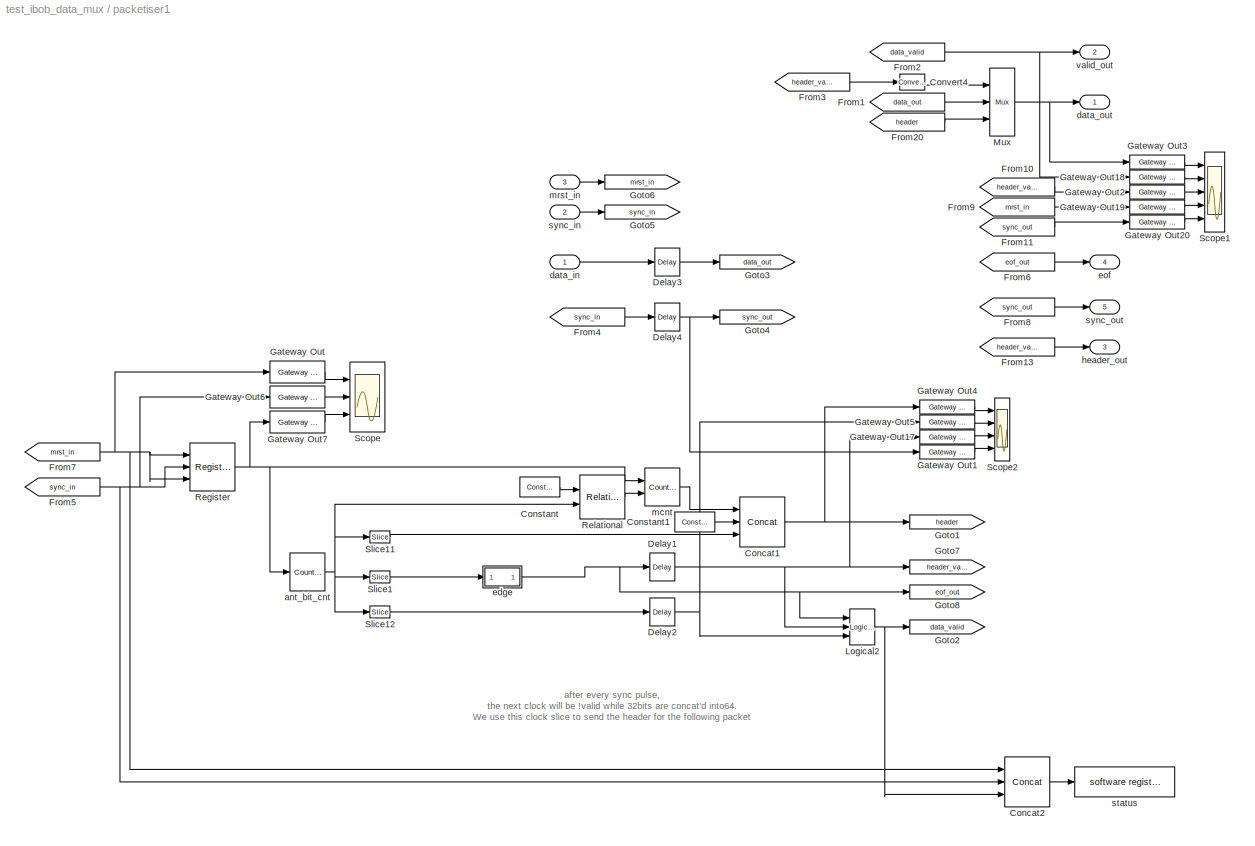
BLOCK [SubSystem] packetiser1
  MaskCallbackString = |
  MaskDescription = Package 32 bit data into 64 bits and identify data as coming from antenna 0 or 1
  MaskEnableString = on,on
  MaskIconFrame = on
  MaskIconOpaque = on
  MaskIconRotate = none
  MaskIconUnits = autoscale
  MaskPromptString = Payload length: (in 64bit words) (2^n)|Number of antennas on this link (2^n)
  MaskStyleString = edit,edit
  MaskTabNameString = ,
  MaskToolTipString = on,on
  MaskTunableValueString = on,on
  MaskValueString = 5|1
  MaskVarAliasString = ,
  MaskVariables = nwrd_bits=@1;ant_bits=@2;
  MaskVisibilityString = on,on
  MinAlgLoopOccurrences = off
  Ports = [3, 5]
  RTWSystemCode = Auto
  TreatAsAtomicUnit = off
BLOCK [Reference] packetiser1/Concat1  REF=xbsIndex_r3/Concat
  Ports = [3, 1]
  SourceBlock = xbsIndex_r3/Concat
  SourceType = Xilinx Bus Concatenator
  dbl_ovrd = off
  explicit_period = off
  num_inputs = 3
  period = 1
BLOCK [Reference] packetiser1/Concat2  REF=xbsIndex_r3/Concat
  Ports = [3, 1]
  SourceBlock = xbsIndex_r3/Concat
  SourceType = Xilinx Bus Concatenator
  dbl_ovrd = off
  explicit_period = off
  num_inputs = 3
  period = 1
BLOCK [Reference] packetiser1/Constant  REF=xbsIndex_r3/Constant
  Ports = [0, 1]
  SourceBlock = xbsIndex_r3/Constant
  SourceType = Xilinx Constant Block
  arith_type = Unsigned
  bin_pt = 0
  carry = CIN
  const = 0
  dbl_ovrd = off
  equ = P=C
  explicit_period = on
  inp1 = P
  inp2 = PCIN>>17
  iostate = 0
  n_bits = nwrd_bits+ant_bits+1
  opr = +
  opselect = C
  period = 1
BLOCK [Reference] packetiser1/Constant1  REF=xbsIndex_r3/Constant
  Ports = [0, 1]
  SourceBlock = xbsIndex_r3/Constant
  SourceType = Xilinx Constant Block
  arith_type = Unsigned
  bin_pt = 0
  carry = CIN
  const = 0
  dbl_ovrd = off
  equ = P=C
  explicit_period = on
  inp1 = P
  inp2 = PCIN>>17
  iostate = 0
  n_bits = 16-ant_bits
  opr = +
  opselect = C
  period = 1
BLOCK [Reference] packetiser1/Convert4  REF=xbsIndex_r3/Convert
  Ports = [1, 1]
  SourceBlock = xbsIndex_r3/Convert
  SourceType = Xilinx Converter Block
  arith_type = Unsigned
  bin_pt = 0
  dbl_ovrd = off
  explicit_period = off
  inserted_by_tool = off
  latency = 0
  n_bits = 1
  overflow = Wrap
  period = 1
  pipeline = off
  quantization = Truncate
  show_param = off
  xl_area = [0, 0, 0, 0, 0, 0, 0]
  xl_use_area = off
BLOCK [Reference] packetiser1/Delay1  REF=xbsIndex_r3/Delay
  Ports = [1, 1]
  SourceBlock = xbsIndex_r3/Delay
  SourceType = Xilinx Delay Block
  accept_only_valid = off
  dbl_ovrd = off
  en = off
  explicit_period = off
  init_zero = on
  latency = 1
  period = 1
  reg_retiming = on
  show_param = off
  xl_area = [0, 0, 0, 0, 0, 0, 0]
  xl_use_area = off
BLOCK [Reference] packetiser1/Delay2  REF=xbsIndex_r3/Delay
  Ports = [1, 1]
  SourceBlock = xbsIndex_r3/Delay
  SourceType = Xilinx Delay Block
  accept_only_valid = off
  dbl_ovrd = off
  en = off
  explicit_period = off
  init_zero = on
  latency = 1
  period = 1
  reg_retiming = off
  show_param = off
  xl_area = [0, 0, 0, 0, 0, 0, 0]
  xl_use_area = off
BLOCK [Reference] packetiser1/Delay3  REF=xbsIndex_r3/Delay
  Ports = [1, 1]
  SourceBlock = xbsIndex_r3/Delay
  SourceType = Xilinx Delay Block
  accept_only_valid = off
  dbl_ovrd = off
  en = off
  explicit_period = off
  init_zero = on
  latency = 1
  period = 1
  reg_retiming = on
  show_param = off
  xl_area = [0, 0, 0, 0, 0, 0, 0]
  xl_use_area = off
BLOCK [Reference] packetiser1/Delay4  REF=xbsIndex_r3/Delay
  Ports = [1, 1]
  SourceBlock = xbsIndex_r3/Delay
  SourceType = Xilinx Delay Block
  accept_only_valid = off
  dbl_ovrd = off
  en = off
  explicit_period = off
  init_zero = on
  latency = 1
  period = 1
  reg_retiming = on
  show_param = off
  xl_area = [0, 0, 0, 0, 0, 0, 0]
  xl_use_area = off
BLOCK [From] packetiser1/From1
  CloseFcn = tagdialog Close
  GotoTag = data_out
BLOCK [From] packetiser1/From10
  CloseFcn = tagdialog Close
  GotoTag = header_valid
BLOCK [From] packetiser1/From11
  CloseFcn = tagdialog Close
  GotoTag = sync_out
BLOCK [From] packetiser1/From13
  CloseFcn = tagdialog Close
  GotoTag = header_valid
BLOCK [From] packetiser1/From2
  CloseFcn = tagdialog Close
  GotoTag = data_valid
BLOCK [From] packetiser1/From20
  CloseFcn = tagdialog Close
  GotoTag = header
BLOCK [From] packetiser1/From3
  CloseFcn = tagdialog Close
  GotoTag = header_valid
BLOCK [From] packetiser1/From4
  CloseFcn = tagdialog Close
  GotoTag = sync_in
BLOCK [From] packetiser1/From5
  CloseFcn = tagdialog Close
  GotoTag = sync_in
BLOCK [From] packetiser1/From6
  CloseFcn = tagdialog Close
  GotoTag = eof_out
BLOCK [From] packetiser1/From7
  CloseFcn = tagdialog Close
  GotoTag = mrst_in
BLOCK [From] packetiser1/From8
  CloseFcn = tagdialog Close
  GotoTag = sync_out
BLOCK [From] packetiser1/From9
  CloseFcn = tagdialog Close
  GotoTag = mrst_in
BLOCK [Reference] packetiser1/Gateway Out  REF=xbsIndex_r3/Gateway Out
  LOCs = {}
  Ports = [1, 1]
  SourceBlock = xbsIndex_r3/Gateway Out
  SourceType = Xilinx Gateway Out
  arith_type = Boolean
  bin_pt = 6
  hdl_port = on
  locs_specified = off
  nbits = 8
  needs_fixed_name = off
  output_type = Double
  overflow = Wrap
  quantization = Truncate
  show_param = off
  timing_constraint = None
  xl_area = [0, 0, 0, 0, 0, 0, 0]
  xl_use_area = off
BLOCK [Reference] packetiser1/Gateway Out1  REF=xbsIndex_r3/Gateway Out
  LOCs = {}
  Ports = [1, 1]
  SourceBlock = xbsIndex_r3/Gateway Out
  SourceType = Xilinx Gateway Out
  arith_type = Boolean
  bin_pt = 6
  hdl_port = on
  locs_specified = off
  nbits = 8
  needs_fixed_name = off
  output_type = Double
  overflow = Wrap
  quantization = Truncate
  show_param = off
  timing_constraint = None
  xl_area = [0, 0, 0, 0, 0, 0, 0]
  xl_use_area = off
BLOCK [Reference] packetiser1/Gateway Out17  REF=xbsIndex_r3/Gateway Out
  LOCs = {}
  Ports = [1, 1]
  SourceBlock = xbsIndex_r3/Gateway Out
  SourceType = Xilinx Gateway Out
  arith_type = Boolean
  bin_pt = 6
  hdl_port = on
  locs_specified = off
  nbits = 8
  needs_fixed_name = off
  output_type = Double
  overflow = Wrap
  quantization = Truncate
  show_param = off
  timing_constraint = None
  xl_area = [0, 0, 0, 0, 0, 0, 0]
  xl_use_area = off
BLOCK [Reference] packetiser1/Gateway Out18  REF=xbsIndex_r3/Gateway Out
  LOCs = {}
  Ports = [1, 1]
  SourceBlock = xbsIndex_r3/Gateway Out
  SourceType = Xilinx Gateway Out
  arith_type = Boolean
  bin_pt = 6
  hdl_port = on
  locs_specified = off
  nbits = 8
  needs_fixed_name = off
  output_type = Double
  overflow = Wrap
  quantization = Truncate
  show_param = off
  timing_constraint = None
  xl_area = [0, 0, 0, 0, 0, 0, 0]
  xl_use_area = off
BLOCK [Reference] packetiser1/Gateway Out19  REF=xbsIndex_r3/Gateway Out
  LOCs = {}
  Ports = [1, 1]
  SourceBlock = xbsIndex_r3/Gateway Out
  SourceType = Xilinx Gateway Out
  arith_type = Boolean
  bin_pt = 6
  hdl_port = on
  locs_specified = off
  nbits = 8
  needs_fixed_name = off
  output_type = Double
  overflow = Wrap
  quantization = Truncate
  show_param = off
  timing_constraint = None
  xl_area = [0, 0, 0, 0, 0, 0, 0]
  xl_use_area = off
BLOCK [Reference] packetiser1/Gateway Out2  REF=xbsIndex_r3/Gateway Out
  LOCs = {}
  Ports = [1, 1]
  SourceBlock = xbsIndex_r3/Gateway Out
  SourceType = Xilinx Gateway Out
  arith_type = Boolean
  bin_pt = 6
  hdl_port = on
  locs_specified = off
  nbits = 8
  needs_fixed_name = off
  output_type = Double
  overflow = Wrap
  quantization = Truncate
  show_param = off
  timing_constraint = None
  xl_area = [0, 0, 0, 0, 0, 0, 0]
  xl_use_area = off
BLOCK [Reference] packetiser1/Gateway Out20  REF=xbsIndex_r3/Gateway Out
  LOCs = {}
  Ports = [1, 1]
  SourceBlock = xbsIndex_r3/Gateway Out
  SourceType = Xilinx Gateway Out
  arith_type = Boolean
  bin_pt = 6
  hdl_port = on
  locs_specified = off
  nbits = 8
  needs_fixed_name = off
  output_type = Double
  overflow = Wrap
  quantization = Truncate
  show_param = off
  timing_constraint = None
  xl_area = [0, 0, 0, 0, 0, 0, 0]
  xl_use_area = off
BLOCK [Reference] packetiser1/Gateway Out3  REF=xbsIndex_r3/Gateway Out
  LOCs = {}
  Ports = [1, 1]
  SourceBlock = xbsIndex_r3/Gateway Out
  SourceType = Xilinx Gateway Out
  arith_type = Boolean
  bin_pt = 6
  hdl_port = on
  locs_specified = off
  nbits = 8
  needs_fixed_name = off
  output_type = Double
  overflow = Wrap
  quantization = Truncate
  show_param = off
  timing_constraint = None
  xl_area = [0, 0, 0, 0, 0, 0, 0]
  xl_use_area = off
BLOCK [Reference] packetiser1/Gateway Out4  REF=xbsIndex_r3/Gateway Out
  LOCs = {}
  Ports = [1, 1]
  SourceBlock = xbsIndex_r3/Gateway Out
  SourceType = Xilinx Gateway Out
  arith_type = Boolean
  bin_pt = 6
  hdl_port = on
  locs_specified = off
  nbits = 8
  needs_fixed_name = off
  output_type = Double
  overflow = Wrap
  quantization = Truncate
  show_param = off
  timing_constraint = None
  xl_area = [0, 0, 0, 0, 0, 0, 0]
  xl_use_area = off
BLOCK [Reference] packetiser1/Gateway Out5  REF=xbsIndex_r3/Gateway Out
  LOCs = {}
  Ports = [1, 1]
  SourceBlock = xbsIndex_r3/Gateway Out
  SourceType = Xilinx Gateway Out
  arith_type = Boolean
  bin_pt = 6
  hdl_port = on
  locs_specified = off
  nbits = 8
  needs_fixed_name = off
  output_type = Double
  overflow = Wrap
  quantization = Truncate
  show_param = off
  timing_constraint = None
  xl_area = [0, 0, 0, 0, 0, 0, 0]
  xl_use_area = off
BLOCK [Reference] packetiser1/Gateway Out6  REF=xbsIndex_r3/Gateway Out
  LOCs = {}
  Ports = [1, 1]
  SourceBlock = xbsIndex_r3/Gateway Out
  SourceType = Xilinx Gateway Out
  arith_type = Boolean
  bin_pt = 6
  hdl_port = on
  locs_specified = off
  nbits = 8
  needs_fixed_name = off
  output_type = Double
  overflow = Wrap
  quantization = Truncate
  show_param = off
  timing_constraint = None
  xl_area = [0, 0, 0, 0, 0, 0, 0]
  xl_use_area = off
BLOCK [Reference] packetiser1/Gateway Out7  REF=xbsIndex_r3/Gateway Out
  LOCs = {}
  Ports = [1, 1]
  SourceBlock = xbsIndex_r3/Gateway Out
  SourceType = Xilinx Gateway Out
  arith_type = Boolean
  bin_pt = 6
  hdl_port = on
  locs_specified = off
  nbits = 8
  needs_fixed_name = off
  output_type = Double
  overflow = Wrap
  quantization = Truncate
  show_param = off
  timing_constraint = None
  xl_area = [0, 0, 0, 0, 0, 0, 0]
  xl_use_area = off
BLOCK [Goto] packetiser1/Goto1
  GotoTag = header
  TagVisibility = local
BLOCK [Goto] packetiser1/Goto2
  GotoTag = data_valid
  TagVisibility = local
BLOCK [Goto] packetiser1/Goto3
  GotoTag = data_out
  TagVisibility = local
BLOCK [Goto] packetiser1/Goto4
  GotoTag = sync_out
  TagVisibility = local
BLOCK [Goto] packetiser1/Goto5
  GotoTag = sync_in
  TagVisibility = local
BLOCK [Goto] packetiser1/Goto6
  GotoTag = mrst_in
  TagVisibility = local
BLOCK [Goto] packetiser1/Goto7
  GotoTag = header_valid
  TagVisibility = local
BLOCK [Goto] packetiser1/Goto8
  GotoTag = eof_out
  TagVisibility = local
BLOCK [Reference] packetiser1/Logical2  REF=xbsIndex_r3/Logical
  Ports = [3, 1]
  SourceBlock = xbsIndex_r3/Logical
  SourceType = Xilinx Logical Block
  align_bp = on
  arith_type = Unsigned
  bin_pt = 0
  dbl_ovrd = off
  en = off
  explicit_period = on
  inputs = 3
  latency = 0
  logical_function = OR
  n_bits = 1
  period = 1
  precision = Full
  show_param = off
  xl_area = [0, 0, 0, 0, 0, 0, 0]
  xl_use_area = off
BLOCK [Reference] packetiser1/Mux  REF=xbsIndex_r3/Mux
  Ports = [3, 1]
  SourceBlock = xbsIndex_r3/Mux
  SourceType = Xilinx Multiplexer Block
  arith_type = Signed  (2's comp)
  bin_pt = 2
  dbl_ovrd = off
  en = off
  explicit_period = off
  gen_core = off
  inputs = 2
  latency = 0
  mux_type = off
  n_bits = 8
  overflow = Wrap
  period = 1
  precision = Full
  quantization = Truncate
  show_param = off
  use_rpm = off
  xl_area = [0, 0, 0, 0, 0, 0, 0]
  xl_use_area = off
BLOCK [Reference] packetiser1/Register  REF=xbsIndex_r3/Register
  Ports = [3, 1]
  SourceBlock = xbsIndex_r3/Register
  SourceType = Xilinx Register Block
  dbl_ovrd = off
  en = on
  explicit_period = off
  init = 0
  out_en = off
  period = 1
  reg_only_valid = off
  rst = on
  show_param = off
  xl_area = [0, 0, 0, 0, 0, 0, 0]
  xl_use_area = off
BLOCK [Reference] packetiser1/Relational  REF=xbsIndex_r3/Relational
  Ports = [2, 1]
  SourceBlock = xbsIndex_r3/Relational
  SourceType = Xilinx Relational Block
  dbl_ovrd = off
  en = off
  explicit_period = off
  latency = 0
  mode = a=b
  period = 1
  show_param = off
  xl_area = [0, 0, 0, 0, 0, 0, 0]
  xl_use_area = off
BLOCK [Scope] packetiser1/Scope
  DataFormat = StructureWithTime
  LimitDataPoints = off
  NumInputPorts = 3
  Ports = [3]
  SaveName = ScopeData8
  YMax = 4.5e+023~1~5
  YMin = -16777200~0~-5
  ZoomMode = xonly
BLOCK [Scope] packetiser1/Scope1
  DataFormat = StructureWithTime
  LimitDataPoints = off
  NumInputPorts = 5
  Ports = [5]
  SaveName = ScopeData6
  YMax = 4e+013~1~1~1~1
  YMin = 0~0~0~-1~-1
  ZoomMode = xonly
BLOCK [Scope] packetiser1/Scope2
  DataFormat = StructureWithTime
  LimitDataPoints = off
  NumInputPorts = 4
  Ports = [4]
  SaveName = ScopeData7
  YMax = 6.5e+006~1~1~5
  YMin = 0~0~0~-5
  ZoomMode = xonly
BLOCK [Reference] packetiser1/Slice1  REF=xbsIndex_r3/Slice
  Ports = [1, 1]
  SourceBlock = xbsIndex_r3/Slice
  SourceType = Xilinx Slice Block
  base0 = LSB of Input
  base1 = MSB of Input
  bit0 = nwrd_bits+1
  bit1 = 0
  boolean_output = on
  dbl_ovrd = off
  explicit_period = off
  mode = Lower Bit Location + Width
  nbits = 1
  period = 1
BLOCK [Reference] packetiser1/Slice11  REF=xbsIndex_r3/Slice
  Ports = [1, 1]
  SourceBlock = xbsIndex_r3/Slice
  SourceType = Xilinx Slice Block
  base0 = LSB of Input
  base1 = MSB of Input
  bit0 = nwrd_bits+1
  bit1 = 0
  boolean_output = on
  dbl_ovrd = off
  explicit_period = off
  mode = Lower Bit Location + Width
  nbits = ant_bits
  period = 1
BLOCK [Reference] packetiser1/Slice12  REF=xbsIndex_r3/Slice
  Ports = [1, 1]
  SourceBlock = xbsIndex_r3/Slice
  SourceType = Xilinx Slice Block
  base0 = LSB of Input
  base1 = MSB of Input
  bit0 = 0
  bit1 = 0
  boolean_output = on
  dbl_ovrd = off
  explicit_period = off
  mode = Lower Bit Location + Width
  nbits = 1
  period = 1
BLOCK [Reference] packetiser1/ant_bit_cnt  REF=xbsIndex_r3/Counter
  Ports = [1, 1]
  SourceBlock = xbsIndex_r3/Counter
  SourceType = Xilinx Counter Block
  arith_type = Unsigned
  bin_pt = 0
  cnt_by_val = 1
  cnt_to = Inf
  cnt_type = Free Running
  dbl_ovrd = off
  en = off
  explicit_period = on
  gen_core = off
  load_pin = off
  n_bits = nwrd_bits+ant_bits+1
  operation = Up
  period = 1
  rst = on
  show_param = off
  start_count = 0
  use_rpm = on
  xl_area = [0, 0, 0, 0, 0, 0, 0]
  xl_use_area = off
BLOCK [Inport] packetiser1/data_in
  IconDisplay = Port number
  LatchInput = off
  Port = 1
BLOCK [Outport] packetiser1/data_out
  BusOutputAsStruct = off
  IconDisplay = Port number
BLOCK [SubSystem] packetiser1/edge
  MaskDescription = Outputs true if a boolean input signal is not equal to its value last clock.
  MaskHelp = eval('xlWeb([getenv(''MLIB_ROOT''), ''<path>''])')
  MaskIconFrame = on
  MaskIconOpaque = on
  MaskIconRotate = none
  MaskIconUnits = autoscale
  MaskType = edge
  MinAlgLoopOccurrences = off
  Ports = [1, 1]
  RTWSystemCode = Auto
  TreatAsAtomicUnit = off
BLOCK [Reference] packetiser1/edge/Delay4  REF=xbsIndex_r3/Delay
  Ports = [1, 1]
  SourceBlock = xbsIndex_r3/Delay
  SourceType = Xilinx Delay Block
  accept_only_valid = off
  dbl_ovrd = off
  en = off
  explicit_period = off
  init_zero = on
  latency = 1
  period = 1
  reg_retiming = off
  show_param = off
  xl_area = [0, 0, 0, 0, 0, 0, 0]
  xl_use_area = off
BLOCK [Reference] packetiser1/edge/Logical3  REF=xbsIndex_r3/Logical
  Ports = [2, 1]
  SourceBlock = xbsIndex_r3/Logical
  SourceType = Xilinx Logical Block
  align_bp = on
  arith_type = Unsigned
  bin_pt = 2
  dbl_ovrd = off
  en = off
  explicit_period = off
  inputs = 2
  latency = 0
  logical_function = XOR
  n_bits = 8
  period = 1
  precision = Full
  show_param = off
  xl_area = [0, 0, 0, 0, 0, 0, 0]
  xl_use_area = off
BLOCK [Inport] packetiser1/edge/in
  IconDisplay = Port number
  LatchInput = off
  Port = 1
BLOCK [Outport] packetiser1/edge/out
  BusOutputAsStruct = off
  IconDisplay = Port number
BLOCK [Outport] packetiser1/eof
  BusOutputAsStruct = off
  IconDisplay = Port number
  Port = 4
BLOCK [Outport] packetiser1/header_out
  BusOutputAsStruct = off
  IconDisplay = Port number
  Port = 3
BLOCK [Reference] packetiser1/mcnt  REF=xbsIndex_r3/Counter
  Ports = [2, 1]
  SourceBlock = xbsIndex_r3/Counter
  SourceType = Xilinx Counter Block
  arith_type = Unsigned
  bin_pt = 0
  cnt_by_val = 1
  cnt_to = Inf
  cnt_type = Free Running
  dbl_ovrd = off
  en = on
  explicit_period = off
  gen_core = off
  load_pin = off
  n_bits = 48
  operation = Up
  period = 1
  rst = on
  show_param = off
  start_count = 0
  use_rpm = on
  xl_area = [0, 0, 0, 0, 0, 0, 0]
  xl_use_area = off
BLOCK [Inport] packetiser1/mrst_in
  IconDisplay = Port number
  LatchInput = off
  Port = 3
BLOCK [Reference] packetiser1/status  REF=xps_library/software register  (lib defined in mdl_00b5cec29cd0, mdl_02ab6ecaa3d1, +5 more)
  Ports = [1, 1]
  ShowPortLabels = on
  SourceBlock = xps_library/software register
  Tag = xps:sw_reg
  arith_type = Unsigned
  bin_pt = 0
  bitwidth = 32
  gw_name = test_ibob_data_mux_packetiser1_status_user_data_in
  io_dir = To Processor
  sample_period = 1
BLOCK [Inport] packetiser1/sync_in
  IconDisplay = Port number
  LatchInput = off
  Port = 2
BLOCK [Outport] packetiser1/sync_out
  BusOutputAsStruct = off
  IconDisplay = Port number
  Port = 5
BLOCK [Outport] packetiser1/valid_out
  BusOutputAsStruct = off
  IconDisplay = Port number
  Port = 2
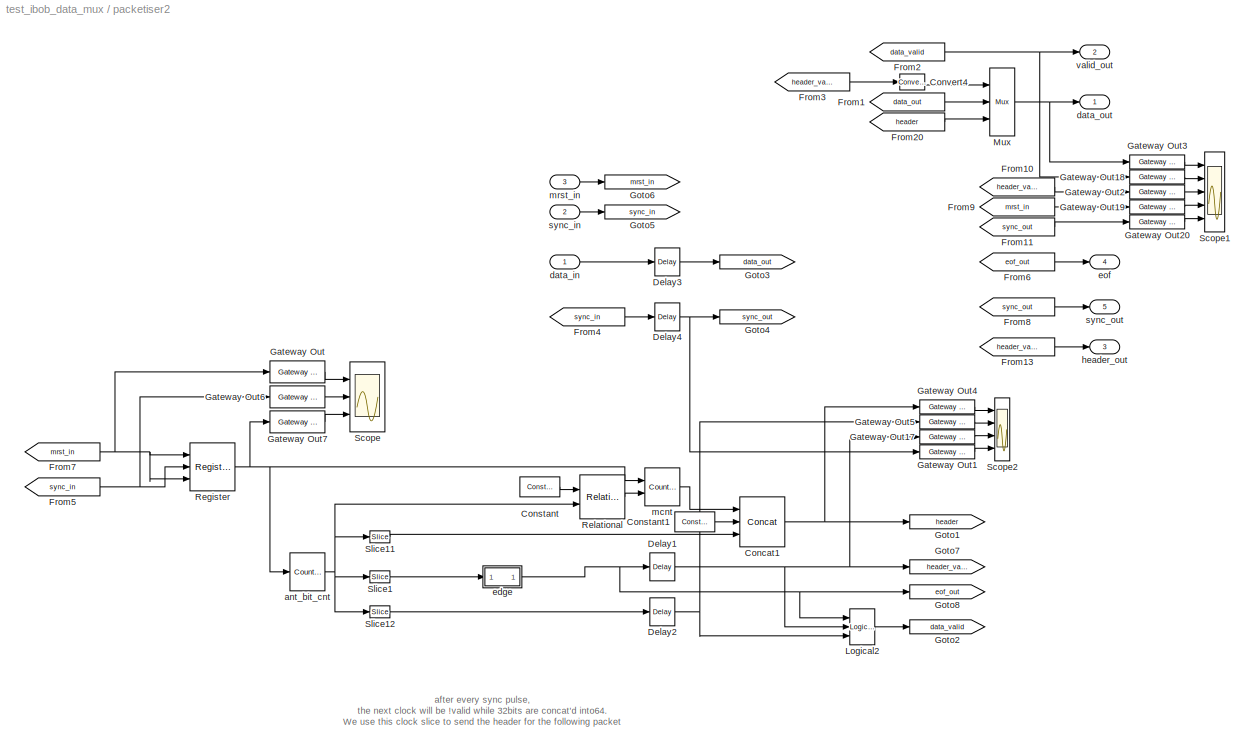
BLOCK [SubSystem] packetiser2
  MaskCallbackString = |
  MaskDescription = Package 32 bit data into 64 bits and identify data as coming from antenna 0 or 1
  MaskEnableString = on,on
  MaskIconFrame = on
  MaskIconOpaque = on
  MaskIconRotate = none
  MaskIconUnits = autoscale
  MaskPromptString = Payload length: (in 64bit words) (2^n)|Number of antennas on this link (2^n)
  MaskStyleString = edit,edit
  MaskTabNameString = ,
  MaskToolTipString = on,on
  MaskTunableValueString = on,on
  MaskValueString = 5|1
  MaskVarAliasString = ,
  MaskVariables = nwrd_bits=@1;ant_bits=@2;
  MaskVisibilityString = on,on
  MinAlgLoopOccurrences = off
  Ports = [3, 5]
  RTWSystemCode = Auto
  TreatAsAtomicUnit = off
BLOCK [Reference] packetiser2/Concat1  REF=xbsIndex_r3/Concat
  Ports = [3, 1]
  SourceBlock = xbsIndex_r3/Concat
  SourceType = Xilinx Bus Concatenator
  dbl_ovrd = off
  explicit_period = off
  num_inputs = 3
  period = 1
BLOCK [Reference] packetiser2/Constant  REF=xbsIndex_r3/Constant
  Ports = [0, 1]
  SourceBlock = xbsIndex_r3/Constant
  SourceType = Xilinx Constant Block
  arith_type = Unsigned
  bin_pt = 0
  carry = CIN
  const = 0
  dbl_ovrd = off
  equ = P=C
  explicit_period = on
  inp1 = P
  inp2 = PCIN>>17
  iostate = 0
  n_bits = nwrd_bits+ant_bits+1
  opr = +
  opselect = C
  period = 1
BLOCK [Reference] packetiser2/Constant1  REF=xbsIndex_r3/Constant
  Ports = [0, 1]
  SourceBlock = xbsIndex_r3/Constant
  SourceType = Xilinx Constant Block
  arith_type = Unsigned
  bin_pt = 0
  carry = CIN
  const = 0
  dbl_ovrd = off
  equ = P=C
  explicit_period = on
  inp1 = P
  inp2 = PCIN>>17
  iostate = 0
  n_bits = 16-ant_bits
  opr = +
  opselect = C
  period = 1
BLOCK [Reference] packetiser2/Convert4  REF=xbsIndex_r3/Convert
  Ports = [1, 1]
  SourceBlock = xbsIndex_r3/Convert
  SourceType = Xilinx Converter Block
  arith_type = Unsigned
  bin_pt = 0
  dbl_ovrd = off
  explicit_period = off
  inserted_by_tool = off
  latency = 0
  n_bits = 1
  overflow = Wrap
  period = 1
  pipeline = off
  quantization = Truncate
  show_param = off
  xl_area = [0, 0, 0, 0, 0, 0, 0]
  xl_use_area = off
BLOCK [Reference] packetiser2/Delay1  REF=xbsIndex_r3/Delay
  Ports = [1, 1]
  SourceBlock = xbsIndex_r3/Delay
  SourceType = Xilinx Delay Block
  accept_only_valid = off
  dbl_ovrd = off
  en = off
  explicit_period = off
  init_zero = on
  latency = 1
  period = 1
  reg_retiming = on
  show_param = off
  xl_area = [0, 0, 0, 0, 0, 0, 0]
  xl_use_area = off
BLOCK [Reference] packetiser2/Delay2  REF=xbsIndex_r3/Delay
  Ports = [1, 1]
  SourceBlock = xbsIndex_r3/Delay
  SourceType = Xilinx Delay Block
  accept_only_valid = off
  dbl_ovrd = off
  en = off
  explicit_period = off
  init_zero = on
  latency = 1
  period = 1
  reg_retiming = off
  show_param = off
  xl_area = [0, 0, 0, 0, 0, 0, 0]
  xl_use_area = off
BLOCK [Reference] packetiser2/Delay3  REF=xbsIndex_r3/Delay
  Ports = [1, 1]
  SourceBlock = xbsIndex_r3/Delay
  SourceType = Xilinx Delay Block
  accept_only_valid = off
  dbl_ovrd = off
  en = off
  explicit_period = off
  init_zero = on
  latency = 1
  period = 1
  reg_retiming = on
  show_param = off
  xl_area = [0, 0, 0, 0, 0, 0, 0]
  xl_use_area = off
BLOCK [Reference] packetiser2/Delay4  REF=xbsIndex_r3/Delay
  Ports = [1, 1]
  SourceBlock = xbsIndex_r3/Delay
  SourceType = Xilinx Delay Block
  accept_only_valid = off
  dbl_ovrd = off
  en = off
  explicit_period = off
  init_zero = on
  latency = 1
  period = 1
  reg_retiming = on
  show_param = off
  xl_area = [0, 0, 0, 0, 0, 0, 0]
  xl_use_area = off
BLOCK [From] packetiser2/From1
  CloseFcn = tagdialog Close
  GotoTag = data_out
BLOCK [From] packetiser2/From10
  CloseFcn = tagdialog Close
  GotoTag = header_valid
BLOCK [From] packetiser2/From11
  CloseFcn = tagdialog Close
  GotoTag = sync_out
BLOCK [From] packetiser2/From13
  CloseFcn = tagdialog Close
  GotoTag = header_valid
BLOCK [From] packetiser2/From2
  CloseFcn = tagdialog Close
  GotoTag = data_valid
BLOCK [From] packetiser2/From20
  CloseFcn = tagdialog Close
  GotoTag = header
BLOCK [From] packetiser2/From3
  CloseFcn = tagdialog Close
  GotoTag = header_valid
BLOCK [From] packetiser2/From4
  CloseFcn = tagdialog Close
  GotoTag = sync_in
BLOCK [From] packetiser2/From5
  CloseFcn = tagdialog Close
  GotoTag = sync_in
BLOCK [From] packetiser2/From6
  CloseFcn = tagdialog Close
  GotoTag = eof_out
BLOCK [From] packetiser2/From7
  CloseFcn = tagdialog Close
  GotoTag = mrst_in
BLOCK [From] packetiser2/From8
  CloseFcn = tagdialog Close
  GotoTag = sync_out
BLOCK [From] packetiser2/From9
  CloseFcn = tagdialog Close
  GotoTag = mrst_in
BLOCK [Reference] packetiser2/Gateway Out  REF=xbsIndex_r3/Gateway Out
  LOCs = {}
  Ports = [1, 1]
  SourceBlock = xbsIndex_r3/Gateway Out
  SourceType = Xilinx Gateway Out
  arith_type = Boolean
  bin_pt = 6
  hdl_port = on
  locs_specified = off
  nbits = 8
  needs_fixed_name = off
  output_type = Double
  overflow = Wrap
  quantization = Truncate
  show_param = off
  timing_constraint = None
  xl_area = [0, 0, 0, 0, 0, 0, 0]
  xl_use_area = off
BLOCK [Reference] packetiser2/Gateway Out1  REF=xbsIndex_r3/Gateway Out
  LOCs = {}
  Ports = [1, 1]
  SourceBlock = xbsIndex_r3/Gateway Out
  SourceType = Xilinx Gateway Out
  arith_type = Boolean
  bin_pt = 6
  hdl_port = on
  locs_specified = off
  nbits = 8
  needs_fixed_name = off
  output_type = Double
  overflow = Wrap
  quantization = Truncate
  show_param = off
  timing_constraint = None
  xl_area = [0, 0, 0, 0, 0, 0, 0]
  xl_use_area = off
BLOCK [Reference] packetiser2/Gateway Out17  REF=xbsIndex_r3/Gateway Out
  LOCs = {}
  Ports = [1, 1]
  SourceBlock = xbsIndex_r3/Gateway Out
  SourceType = Xilinx Gateway Out
  arith_type = Boolean
  bin_pt = 6
  hdl_port = on
  locs_specified = off
  nbits = 8
  needs_fixed_name = off
  output_type = Double
  overflow = Wrap
  quantization = Truncate
  show_param = off
  timing_constraint = None
  xl_area = [0, 0, 0, 0, 0, 0, 0]
  xl_use_area = off
BLOCK [Reference] packetiser2/Gateway Out18  REF=xbsIndex_r3/Gateway Out
  LOCs = {}
  Ports = [1, 1]
  SourceBlock = xbsIndex_r3/Gateway Out
  SourceType = Xilinx Gateway Out
  arith_type = Boolean
  bin_pt = 6
  hdl_port = on
  locs_specified = off
  nbits = 8
  needs_fixed_name = off
  output_type = Double
  overflow = Wrap
  quantization = Truncate
  show_param = off
  timing_constraint = None
  xl_area = [0, 0, 0, 0, 0, 0, 0]
  xl_use_area = off
BLOCK [Reference] packetiser2/Gateway Out19  REF=xbsIndex_r3/Gateway Out
  LOCs = {}
  Ports = [1, 1]
  SourceBlock = xbsIndex_r3/Gateway Out
  SourceType = Xilinx Gateway Out
  arith_type = Boolean
  bin_pt = 6
  hdl_port = on
  locs_specified = off
  nbits = 8
  needs_fixed_name = off
  output_type = Double
  overflow = Wrap
  quantization = Truncate
  show_param = off
  timing_constraint = None
  xl_area = [0, 0, 0, 0, 0, 0, 0]
  xl_use_area = off
BLOCK [Reference] packetiser2/Gateway Out2  REF=xbsIndex_r3/Gateway Out
  LOCs = {}
  Ports = [1, 1]
  SourceBlock = xbsIndex_r3/Gateway Out
  SourceType = Xilinx Gateway Out
  arith_type = Boolean
  bin_pt = 6
  hdl_port = on
  locs_specified = off
  nbits = 8
  needs_fixed_name = off
  output_type = Double
  overflow = Wrap
  quantization = Truncate
  show_param = off
  timing_constraint = None
  xl_area = [0, 0, 0, 0, 0, 0, 0]
  xl_use_area = off
BLOCK [Reference] packetiser2/Gateway Out20  REF=xbsIndex_r3/Gateway Out
  LOCs = {}
  Ports = [1, 1]
  SourceBlock = xbsIndex_r3/Gateway Out
  SourceType = Xilinx Gateway Out
  arith_type = Boolean
  bin_pt = 6
  hdl_port = on
  locs_specified = off
  nbits = 8
  needs_fixed_name = off
  output_type = Double
  overflow = Wrap
  quantization = Truncate
  show_param = off
  timing_constraint = None
  xl_area = [0, 0, 0, 0, 0, 0, 0]
  xl_use_area = off
BLOCK [Reference] packetiser2/Gateway Out3  REF=xbsIndex_r3/Gateway Out
  LOCs = {}
  Ports = [1, 1]
  SourceBlock = xbsIndex_r3/Gateway Out
  SourceType = Xilinx Gateway Out
  arith_type = Boolean
  bin_pt = 6
  hdl_port = on
  locs_specified = off
  nbits = 8
  needs_fixed_name = off
  output_type = Double
  overflow = Wrap
  quantization = Truncate
  show_param = off
  timing_constraint = None
  xl_area = [0, 0, 0, 0, 0, 0, 0]
  xl_use_area = off
BLOCK [Reference] packetiser2/Gateway Out4  REF=xbsIndex_r3/Gateway Out
  LOCs = {}
  Ports = [1, 1]
  SourceBlock = xbsIndex_r3/Gateway Out
  SourceType = Xilinx Gateway Out
  arith_type = Boolean
  bin_pt = 6
  hdl_port = on
  locs_specified = off
  nbits = 8
  needs_fixed_name = off
  output_type = Double
  overflow = Wrap
  quantization = Truncate
  show_param = off
  timing_constraint = None
  xl_area = [0, 0, 0, 0, 0, 0, 0]
  xl_use_area = off
BLOCK [Reference] packetiser2/Gateway Out5  REF=xbsIndex_r3/Gateway Out
  LOCs = {}
  Ports = [1, 1]
  SourceBlock = xbsIndex_r3/Gateway Out
  SourceType = Xilinx Gateway Out
  arith_type = Boolean
  bin_pt = 6
  hdl_port = on
  locs_specified = off
  nbits = 8
  needs_fixed_name = off
  output_type = Double
  overflow = Wrap
  quantization = Truncate
  show_param = off
  timing_constraint = None
  xl_area = [0, 0, 0, 0, 0, 0, 0]
  xl_use_area = off
BLOCK [Reference] packetiser2/Gateway Out6  REF=xbsIndex_r3/Gateway Out
  LOCs = {}
  Ports = [1, 1]
  SourceBlock = xbsIndex_r3/Gateway Out
  SourceType = Xilinx Gateway Out
  arith_type = Boolean
  bin_pt = 6
  hdl_port = on
  locs_specified = off
  nbits = 8
  needs_fixed_name = off
  output_type = Double
  overflow = Wrap
  quantization = Truncate
  show_param = off
  timing_constraint = None
  xl_area = [0, 0, 0, 0, 0, 0, 0]
  xl_use_area = off
BLOCK [Reference] packetiser2/Gateway Out7  REF=xbsIndex_r3/Gateway Out
  LOCs = {}
  Ports = [1, 1]
  SourceBlock = xbsIndex_r3/Gateway Out
  SourceType = Xilinx Gateway Out
  arith_type = Boolean
  bin_pt = 6
  hdl_port = on
  locs_specified = off
  nbits = 8
  needs_fixed_name = off
  output_type = Double
  overflow = Wrap
  quantization = Truncate
  show_param = off
  timing_constraint = None
  xl_area = [0, 0, 0, 0, 0, 0, 0]
  xl_use_area = off
BLOCK [Goto] packetiser2/Goto1
  GotoTag = header
  TagVisibility = local
BLOCK [Goto] packetiser2/Goto2
  GotoTag = data_valid
  TagVisibility = local
BLOCK [Goto] packetiser2/Goto3
  GotoTag = data_out
  TagVisibility = local
BLOCK [Goto] packetiser2/Goto4
  GotoTag = sync_out
  TagVisibility = local
BLOCK [Goto] packetiser2/Goto5
  GotoTag = sync_in
  TagVisibility = local
BLOCK [Goto] packetiser2/Goto6
  GotoTag = mrst_in
  TagVisibility = local
BLOCK [Goto] packetiser2/Goto7
  GotoTag = header_valid
  TagVisibility = local
BLOCK [Goto] packetiser2/Goto8
  GotoTag = eof_out
  TagVisibility = local
BLOCK [Reference] packetiser2/Logical2  REF=xbsIndex_r3/Logical
  Ports = [3, 1]
  SourceBlock = xbsIndex_r3/Logical
  SourceType = Xilinx Logical Block
  align_bp = on
  arith_type = Unsigned
  bin_pt = 0
  dbl_ovrd = off
  en = off
  explicit_period = on
  inputs = 3
  latency = 0
  logical_function = OR
  n_bits = 1
  period = 1
  precision = Full
  show_param = off
  xl_area = [0, 0, 0, 0, 0, 0, 0]
  xl_use_area = off
BLOCK [Reference] packetiser2/Mux  REF=xbsIndex_r3/Mux
  Ports = [3, 1]
  SourceBlock = xbsIndex_r3/Mux
  SourceType = Xilinx Multiplexer Block
  arith_type = Signed  (2's comp)
  bin_pt = 2
  dbl_ovrd = off
  en = off
  explicit_period = off
  gen_core = off
  inputs = 2
  latency = 0
  mux_type = off
  n_bits = 8
  overflow = Wrap
  period = 1
  precision = Full
  quantization = Truncate
  show_param = off
  use_rpm = off
  xl_area = [0, 0, 0, 0, 0, 0, 0]
  xl_use_area = off
BLOCK [Reference] packetiser2/Register  REF=xbsIndex_r3/Register
  Ports = [3, 1]
  SourceBlock = xbsIndex_r3/Register
  SourceType = Xilinx Register Block
  dbl_ovrd = off
  en = on
  explicit_period = off
  init = 0
  out_en = off
  period = 1
  reg_only_valid = off
  rst = on
  show_param = off
  xl_area = [0, 0, 0, 0, 0, 0, 0]
  xl_use_area = off
BLOCK [Reference] packetiser2/Relational  REF=xbsIndex_r3/Relational
  Ports = [2, 1]
  SourceBlock = xbsIndex_r3/Relational
  SourceType = Xilinx Relational Block
  dbl_ovrd = off
  en = off
  explicit_period = off
  latency = 0
  mode = a=b
  period = 1
  show_param = off
  xl_area = [0, 0, 0, 0, 0, 0, 0]
  xl_use_area = off
BLOCK [Scope] packetiser2/Scope
  DataFormat = StructureWithTime
  LimitDataPoints = off
  NumInputPorts = 3
  Ports = [3]
  SaveName = ScopeData8
  YMax = 4.5e+023~1~5
  YMin = -16777200~0~-5
  ZoomMode = xonly
BLOCK [Scope] packetiser2/Scope1
  DataFormat = StructureWithTime
  LimitDataPoints = off
  NumInputPorts = 5
  Ports = [5]
  SaveName = ScopeData6
  YMax = 4e+013~1~1~1~1
  YMin = 0~0~0~-1~-1
  ZoomMode = xonly
BLOCK [Scope] packetiser2/Scope2
  DataFormat = StructureWithTime
  LimitDataPoints = off
  NumInputPorts = 4
  Ports = [4]
  SaveName = ScopeData7
  YMax = 6.5e+006~1~1~5
  YMin = 0~0~0~-5
  ZoomMode = xonly
BLOCK [Reference] packetiser2/Slice1  REF=xbsIndex_r3/Slice
  Ports = [1, 1]
  SourceBlock = xbsIndex_r3/Slice
  SourceType = Xilinx Slice Block
  base0 = LSB of Input
  base1 = MSB of Input
  bit0 = nwrd_bits+1
  bit1 = 0
  boolean_output = on
  dbl_ovrd = off
  explicit_period = off
  mode = Lower Bit Location + Width
  nbits = 1
  period = 1
BLOCK [Reference] packetiser2/Slice11  REF=xbsIndex_r3/Slice
  Ports = [1, 1]
  SourceBlock = xbsIndex_r3/Slice
  SourceType = Xilinx Slice Block
  base0 = LSB of Input
  base1 = MSB of Input
  bit0 = nwrd_bits+1
  bit1 = 0
  boolean_output = on
  dbl_ovrd = off
  explicit_period = off
  mode = Lower Bit Location + Width
  nbits = ant_bits
  period = 1
BLOCK [Reference] packetiser2/Slice12  REF=xbsIndex_r3/Slice
  Ports = [1, 1]
  SourceBlock = xbsIndex_r3/Slice
  SourceType = Xilinx Slice Block
  base0 = LSB of Input
  base1 = MSB of Input
  bit0 = 0
  bit1 = 0
  boolean_output = on
  dbl_ovrd = off
  explicit_period = off
  mode = Lower Bit Location + Width
  nbits = 1
  period = 1
BLOCK [Reference] packetiser2/ant_bit_cnt  REF=xbsIndex_r3/Counter
  Ports = [1, 1]
  SourceBlock = xbsIndex_r3/Counter
  SourceType = Xilinx Counter Block
  arith_type = Unsigned
  bin_pt = 0
  cnt_by_val = 1
  cnt_to = Inf
  cnt_type = Free Running
  dbl_ovrd = off
  en = off
  explicit_period = on
  gen_core = off
  load_pin = off
  n_bits = nwrd_bits+ant_bits+1
  operation = Up
  period = 1
  rst = on
  show_param = off
  start_count = 0
  use_rpm = on
  xl_area = [0, 0, 0, 0, 0, 0, 0]
  xl_use_area = off
BLOCK [Inport] packetiser2/data_in
  IconDisplay = Port number
  LatchInput = off
  Port = 1
BLOCK [Outport] packetiser2/data_out
  BusOutputAsStruct = off
  IconDisplay = Port number
BLOCK [SubSystem] packetiser2/edge
  MaskDescription = Outputs true if a boolean input signal is not equal to its value last clock.
  MaskHelp = eval('xlWeb([getenv(''MLIB_ROOT''), ''<path>''])')
  MaskIconFrame = on
  MaskIconOpaque = on
  MaskIconRotate = none
  MaskIconUnits = autoscale
  MaskType = edge
  MinAlgLoopOccurrences = off
  Ports = [1, 1]
  RTWSystemCode = Auto
  TreatAsAtomicUnit = off
BLOCK [Reference] packetiser2/edge/Delay4  REF=xbsIndex_r3/Delay
  Ports = [1, 1]
  SourceBlock = xbsIndex_r3/Delay
  SourceType = Xilinx Delay Block
  accept_only_valid = off
  dbl_ovrd = off
  en = off
  explicit_period = off
  init_zero = on
  latency = 1
  period = 1
  reg_retiming = off
  show_param = off
  xl_area = [0, 0, 0, 0, 0, 0, 0]
  xl_use_area = off
BLOCK [Reference] packetiser2/edge/Logical3  REF=xbsIndex_r3/Logical
  Ports = [2, 1]
  SourceBlock = xbsIndex_r3/Logical
  SourceType = Xilinx Logical Block
  align_bp = on
  arith_type = Unsigned
  bin_pt = 2
  dbl_ovrd = off
  en = off
  explicit_period = off
  inputs = 2
  latency = 0
  logical_function = XOR
  n_bits = 8
  period = 1
  precision = Full
  show_param = off
  xl_area = [0, 0, 0, 0, 0, 0, 0]
  xl_use_area = off
BLOCK [Inport] packetiser2/edge/in
  IconDisplay = Port number
  LatchInput = off
  Port = 1
BLOCK [Outport] packetiser2/edge/out
  BusOutputAsStruct = off
  IconDisplay = Port number
BLOCK [Outport] packetiser2/eof
  BusOutputAsStruct = off
  IconDisplay = Port number
  Port = 4
BLOCK [Outport] packetiser2/header_out
  BusOutputAsStruct = off
  IconDisplay = Port number
  Port = 3
BLOCK [Reference] packetiser2/mcnt  REF=xbsIndex_r3/Counter
  Ports = [2, 1]
  SourceBlock = xbsIndex_r3/Counter
  SourceType = Xilinx Counter Block
  arith_type = Unsigned
  bin_pt = 0
  cnt_by_val = 1
  cnt_to = Inf
  cnt_type = Free Running
  dbl_ovrd = off
  en = on
  explicit_period = off
  gen_core = off
  load_pin = off
  n_bits = 48
  operation = Up
  period = 1
  rst = on
  show_param = off
  start_count = 0
  use_rpm = on
  xl_area = [0, 0, 0, 0, 0, 0, 0]
  xl_use_area = off
BLOCK [Inport] packetiser2/mrst_in
  IconDisplay = Port number
  LatchInput = off
  Port = 3
BLOCK [Inport] packetiser2/sync_in
  IconDisplay = Port number
  LatchInput = off
  Port = 2
BLOCK [Outport] packetiser2/sync_out
  BusOutputAsStruct = off
  IconDisplay = Port number
  Port = 5
BLOCK [Outport] packetiser2/valid_out
  BusOutputAsStruct = off
  IconDisplay = Port number
  Port = 2
ANNOTATION mux_adc_levels1: ant_levels
ANNOTATION mux_adc_levels2: ant_levels
ANNOTATION pack_it: A packet has 1x64 bit header\ncontaining mcnt and antenna.\nThe rest of the packet is antenna data. \n\nSync is a heartbeat signal and is no longer used
ANNOTATION pack_it: Header format is defined here\nas 48 bits of mcnt in MSB, 16 bits of\nantenna in LSB.
ANNOTATION pack_it: Incoming data can be:\n1) header\n2) ordinary data\n3) last word of ordinary data (enf-of-frame set)\n4) ADC levels indication\n OOB bits determine whch it is.\nIn addition, it is possible for OOB to carry a signals:\nSync: ibob heartbeat. Sync is no longer used.\nmrst: Master reset.
ANNOTATION pack_it: Mangle header to include base antenna's offset.\nThis is used for the packet header and so must be valid at the start of the packet.
ANNOTATION pack_it: This is a safety check to ensure that the packet is the right size
ANNOTATION pack_it: mcnt encodes both spectrum number\nand frequency number. Frequency number\nmaps to a destination ip address by skipping\nbits for the number of X engines which\nshare a single 10GbE port.
ANNOTATION pack_it: wait for a while after a XAUI link dies
ANNOTATION pack_it: when we get adc power levels \ndata, clock it in
ANNOTATION pack_it/oob_decode: if we're not getting a header or ant_levels data, \nthen it must be ordinary data
ANNOTATION packetiser1: after every sync pulse,\nthe next clock will be !valid while 32bits are concat'd into64.\nWe use this clock slice to send the header for the following packet
ANNOTATION packetiser2: after every sync pulse,\nthe next clock will be !valid while 32bits are concat'd into64.\nWe use this clock slice to send the header for the following packet
LINE Constant1:1 -> mux_adc_levels2:7
LINE Constant2:1 -> pack_it:4
LINE Constant:1 -> mux_adc_levels1:7
NET Counter1:1 -> Concat10:2, Delay11:1, Gateway Out27:1, packetiser1:1, packetiser2:1
LINE Delay11:1 -> Concat10:1
NET Gateway In3:1 -> Gateway Out21:1, mux_adc_levels1:6, mux_adc_levels2:6, packetiser1:3, packetiser2:3
NET Gateway In4:1 -> Counter1:1, Gateway Out28:1, packetiser1:2, packetiser2:2
LINE Gateway Out10:1 -> Scope3:4
LINE Gateway Out11:1 -> Scope3:5
LINE Gateway Out12:1 -> Scope2:3
LINE Gateway Out13:1 -> Scope4:4
LINE Gateway Out14:1 -> Scope4:5
LINE Gateway Out15:1 -> Scope4:1
LINE Gateway Out16:1 -> Scope4:2
LINE Gateway Out17:1 -> Scope4:3
LINE Gateway Out18:1 -> Scope1:2
LINE Gateway Out19:1 -> Scope1:4
LINE Gateway Out1:1 -> Scope:2
LINE Gateway Out20:1 -> Scope1:5
LINE Gateway Out21:1 -> Scope5:3
LINE Gateway Out22:1 -> Scope6:1
LINE Gateway Out23:1 -> Scope6:2
LINE Gateway Out24:1 -> Scope6:3
LINE Gateway Out27:1 -> Scope5:1
LINE Gateway Out28:1 -> Scope5:2
LINE Gateway Out2:1 -> Scope1:3
LINE Gateway Out3:1 -> Scope1:1
LINE Gateway Out4:1 -> Scope2:1
LINE Gateway Out5:1 -> Scope2:2
LINE Gateway Out6:1 -> Scope:3
LINE Gateway Out7:1 -> Scope3:1
LINE Gateway Out8:1 -> Scope3:2
LINE Gateway Out9:1 -> Scope3:3
LINE Gateway Out:1 -> Scope:1
LINE Pulse\nGenerator3:1 -> Gateway In3:1
LINE Pulse\nGenerator4:1 -> Gateway In4:1
NET Register1:1 -> Gateway Out1:1, Gateway Out5:1, pack_it:2
NET Register2:1 -> Gateway Out12:1, Gateway Out6:1, pack_it:3
NET Register:1 -> Gateway Out4:1, Gateway Out:1, pack_it:1
LINE base_ant:1 -> pack_it:5
LINE err_clear_sim1:1 -> base_ant:1
LINE err_clear_sim3:1 -> gbe_ip:1
LINE gbe_ip:1 -> pack_it:6
LINE mux_adc_levels1/Concat2:1 -> mux_adc_levels1/oob:1
LINE mux_adc_levels1/Constant1:1 -> mux_adc_levels1/Concat2:1
NET mux_adc_levels1/Convert3:1 -> mux_adc_levels1/Concat2:3, mux_adc_levels1/Gateway Out:1, mux_adc_levels1/Mux:1
LINE mux_adc_levels1/Gateway Out1:1 -> mux_adc_levels1/Scope:2
LINE mux_adc_levels1/Gateway Out2:1 -> mux_adc_levels1/Scope1:1
LINE mux_adc_levels1/Gateway Out3:1 -> mux_adc_levels1/Scope1:2
LINE mux_adc_levels1/Gateway Out4:1 -> mux_adc_levels1/Scope2:1
LINE mux_adc_levels1/Gateway Out5:1 -> mux_adc_levels1/Scope2:2
LINE mux_adc_levels1/Gateway Out6:1 -> mux_adc_levels1/Scope2:3
LINE mux_adc_levels1/Gateway Out:1 -> mux_adc_levels1/Scope:1
NET mux_adc_levels1/Inverter:1 -> mux_adc_levels1/Gateway Out4:1, mux_adc_levels1/Logical:1
NET mux_adc_levels1/Logical1:1 -> mux_adc_levels1/Register1:2, mux_adc_levels1/Register3:2, mux_adc_levels1/valid_out:1
LINE mux_adc_levels1/Logical2:1 -> mux_adc_levels1/Register2:2
NET mux_adc_levels1/Logical:1 -> mux_adc_levels1/Convert3:1, mux_adc_levels1/Gateway Out6:1, mux_adc_levels1/Logical1:2
NET mux_adc_levels1/Mux:1 -> mux_adc_levels1/Gateway Out1:1, mux_adc_levels1/data_out:1
LINE mux_adc_levels1/Register1:1 -> mux_adc_levels1/Concat2:5
NET mux_adc_levels1/Register2:1 -> mux_adc_levels1/Gateway Out5:1, mux_adc_levels1/Logical2:2, mux_adc_levels1/Logical:2
LINE mux_adc_levels1/Register3:1 -> mux_adc_levels1/Concat2:2
LINE mux_adc_levels1/adc_power:1 -> mux_adc_levels1/Mux:3
LINE mux_adc_levels1/data_in:1 -> mux_adc_levels1/Mux:2
LINE mux_adc_levels1/eof:1 -> mux_adc_levels1/Concat2:4
LINE mux_adc_levels1/header:1 -> mux_adc_levels1/Concat2:6
NET mux_adc_levels1/mrst:1 -> mux_adc_levels1/Register3:1, mux_adc_levels1/Register3:3
NET mux_adc_levels1/sync:1 -> mux_adc_levels1/Register1:1, mux_adc_levels1/Register1:3, mux_adc_levels1/sync_delay1:1
LINE mux_adc_levels1/sync_delay1/Constant1:1 -> mux_adc_levels1/sync_delay1/Relational1:2
LINE mux_adc_levels1/sync_delay1/Constant2:1 -> mux_adc_levels1/sync_delay1/Counter:2
LINE mux_adc_levels1/sync_delay1/Constant3:1 -> mux_adc_levels1/sync_delay1/Mux:1
LINE mux_adc_levels1/sync_delay1/Constant:1 -> mux_adc_levels1/sync_delay1/Relational:1
NET mux_adc_levels1/sync_delay1/Counter:1 -> mux_adc_levels1/sync_delay1/Relational1:1, mux_adc_levels1/sync_delay1/Relational:2
NET mux_adc_levels1/sync_delay1/In:1 -> mux_adc_levels1/sync_delay1/Counter:1, mux_adc_levels1/sync_delay1/Logical:1, mux_adc_levels1/sync_delay1/Mux:2
LINE mux_adc_levels1/sync_delay1/Logical:1 -> mux_adc_levels1/sync_delay1/Counter:3
LINE mux_adc_levels1/sync_delay1/Mux:1 -> mux_adc_levels1/sync_delay1/Out:1
LINE mux_adc_levels1/sync_delay1/Relational1:1 -> mux_adc_levels1/sync_delay1/Logical:2
LINE mux_adc_levels1/sync_delay1/Relational:1 -> mux_adc_levels1/sync_delay1/Mux:3
NET mux_adc_levels1/sync_delay1:1 -> mux_adc_levels1/Gateway Out3:1, mux_adc_levels1/Register2:1, mux_adc_levels1/Register2:3
NET mux_adc_levels1/valid_in:1 -> mux_adc_levels1/Gateway Out2:1, mux_adc_levels1/Inverter:1, mux_adc_levels1/Logical1:1, mux_adc_levels1/Logical2:1
LINE mux_adc_levels1:1 -> Register:1
LINE mux_adc_levels1:2 -> Register1:1
NET mux_adc_levels1:3 -> Register1:2, Register2:1, Register:2
LINE mux_adc_levels2/Concat2:1 -> mux_adc_levels2/oob:1
LINE mux_adc_levels2/Constant1:1 -> mux_adc_levels2/Concat2:1
LINE mux_adc_levels2/Convert1:1 -> mux_adc_levels2/Register1:1
NET mux_adc_levels2/Convert2:1 -> mux_adc_levels2/Concat2:5, mux_adc_levels2/Logical3:1
NET mux_adc_levels2/Convert3:1 -> mux_adc_levels2/Concat2:3, mux_adc_levels2/Gateway Out:1, mux_adc_levels2/Mux:1
LINE mux_adc_levels2/Convert4:1 -> mux_adc_levels2/Concat2:2
LINE mux_adc_levels2/Convert5:1 -> mux_adc_levels2/Concat2:4
LINE mux_adc_levels2/Convert6:1 -> mux_adc_levels2/valid_out:1
LINE mux_adc_levels2/Convert7:1 -> mux_adc_levels2/Concat2:6
LINE mux_adc_levels2/Convert8:1 -> mux_adc_levels2/Logical3:2
LINE mux_adc_levels2/Convert9:1 -> mux_adc_levels2/Register1:2
LINE mux_adc_levels2/Gateway Out1:1 -> mux_adc_levels2/Scope:2
LINE mux_adc_levels2/Gateway Out2:1 -> mux_adc_levels2/Scope1:1
LINE mux_adc_levels2/Gateway Out3:1 -> mux_adc_levels2/Scope1:2
LINE mux_adc_levels2/Gateway Out4:1 -> mux_adc_levels2/Scope2:1
LINE mux_adc_levels2/Gateway Out5:1 -> mux_adc_levels2/Scope2:2
LINE mux_adc_levels2/Gateway Out6:1 -> mux_adc_levels2/Scope2:3
LINE mux_adc_levels2/Gateway Out:1 -> mux_adc_levels2/Scope:1
NET mux_adc_levels2/Inverter:1 -> mux_adc_levels2/Gateway Out4:1, mux_adc_levels2/Logical:1
NET mux_adc_levels2/Logical1:1 -> mux_adc_levels2/Convert6:1, mux_adc_levels2/Convert8:1, mux_adc_levels2/Logical4:1
LINE mux_adc_levels2/Logical2:1 -> mux_adc_levels2/Register2:2
LINE mux_adc_levels2/Logical3:1 -> mux_adc_levels2/Convert9:1
LINE mux_adc_levels2/Logical4:1 -> mux_adc_levels2/Register3:2
NET mux_adc_levels2/Logical:1 -> mux_adc_levels2/Convert3:1, mux_adc_levels2/Gateway Out6:1, mux_adc_levels2/Logical1:2
NET mux_adc_levels2/Mux:1 -> mux_adc_levels2/Gateway Out1:1, mux_adc_levels2/data_out:1
LINE mux_adc_levels2/Register1:1 -> mux_adc_levels2/Convert2:1
NET mux_adc_levels2/Register2:1 -> mux_adc_levels2/Gateway Out5:1, mux_adc_levels2/Logical2:2, mux_adc_levels2/Logical:2
NET mux_adc_levels2/Register3:1 -> mux_adc_levels2/Convert4:1, mux_adc_levels2/Logical4:2
LINE mux_adc_levels2/adc_power:1 -> mux_adc_levels2/Mux:3
LINE mux_adc_levels2/data_in:1 -> mux_adc_levels2/Mux:2
LINE mux_adc_levels2/eof:1 -> mux_adc_levels2/Convert5:1
LINE mux_adc_levels2/header:1 -> mux_adc_levels2/Convert7:1
NET mux_adc_levels2/mrst:1 -> mux_adc_levels2/Register3:1, mux_adc_levels2/Register3:3
NET mux_adc_levels2/sync:1 -> mux_adc_levels2/Convert1:1, mux_adc_levels2/Register1:3, mux_adc_levels2/sync_delay1:1
LINE mux_adc_levels2/sync_delay1/Constant1:1 -> mux_adc_levels2/sync_delay1/Relational1:2
LINE mux_adc_levels2/sync_delay1/Constant2:1 -> mux_adc_levels2/sync_delay1/Counter:2
LINE mux_adc_levels2/sync_delay1/Constant3:1 -> mux_adc_levels2/sync_delay1/Mux:1
LINE mux_adc_levels2/sync_delay1/Constant:1 -> mux_adc_levels2/sync_delay1/Relational:1
NET mux_adc_levels2/sync_delay1/Counter:1 -> mux_adc_levels2/sync_delay1/Relational1:1, mux_adc_levels2/sync_delay1/Relational:2
NET mux_adc_levels2/sync_delay1/In:1 -> mux_adc_levels2/sync_delay1/Counter:1, mux_adc_levels2/sync_delay1/Logical:1, mux_adc_levels2/sync_delay1/Mux:2
LINE mux_adc_levels2/sync_delay1/Logical:1 -> mux_adc_levels2/sync_delay1/Counter:3
LINE mux_adc_levels2/sync_delay1/Mux:1 -> mux_adc_levels2/sync_delay1/Out:1
LINE mux_adc_levels2/sync_delay1/Relational1:1 -> mux_adc_levels2/sync_delay1/Logical:2
LINE mux_adc_levels2/sync_delay1/Relational:1 -> mux_adc_levels2/sync_delay1/Mux:3
NET mux_adc_levels2/sync_delay1:1 -> mux_adc_levels2/Gateway Out3:1, mux_adc_levels2/Register2:1, mux_adc_levels2/Register2:3
NET mux_adc_levels2/valid_in:1 -> mux_adc_levels2/Gateway Out2:1, mux_adc_levels2/Inverter:1, mux_adc_levels2/Logical1:1, mux_adc_levels2/Logical2:1
LINE mux_adc_levels2:1 -> Gateway Out22:1
LINE mux_adc_levels2:2 -> Gateway Out23:1
LINE mux_adc_levels2:3 -> Gateway Out24:1
LINE pack_it/Concat1:1 -> pack_it/Goto6:1
LINE pack_it/Concat6:1 -> pack_it/Slice14:1
LINE pack_it/Constant2:1 -> pack_it/Relational1:2
LINE pack_it/Convert:1 -> pack_it/Mux1:1
LINE pack_it/Delay1:1 -> pack_it/valid_out:1
LINE pack_it/Delay2:1 -> pack_it/eof:1
LINE pack_it/Delay3:1 -> pack_it/Convert:1
LINE pack_it/Delay4:1 -> pack_it/Register5:2
LINE pack_it/Delay:1 -> pack_it/Mux1:2
LINE pack_it/From12:1 -> pack_it/Mux1:3
LINE pack_it/From14:1 -> pack_it/Delay3:1
LINE pack_it/From15:1 -> pack_it/payload_cnt:1
LINE pack_it/From16:1 -> pack_it/Logical2:2
LINE pack_it/From19:1 -> pack_it/Logical2:1
NET pack_it/From4:1 -> pack_it/Register1:2, pack_it/Register:2
LINE pack_it/From5:1 -> pack_it/payload_cnt:2
LINE pack_it/From6:1 -> pack_it/Delay:1
LINE pack_it/From8:1 -> pack_it/Register2:1
NET pack_it/From9:1 -> pack_it/Register1:1, pack_it/Slice4:1
LINE pack_it/Inverter:1 -> pack_it/Logical:2
LINE pack_it/Logical1:1 -> pack_it/xaui_rd:1
LINE pack_it/Logical2:1 -> pack_it/Delay1:1
LINE pack_it/Logical:1 -> pack_it/oob_decode:1
LINE pack_it/Mux1:1 -> pack_it/dout:1
NET pack_it/Register1:1 -> pack_it/Slice1:1, pack_it/Slice2:1
LINE pack_it/Register2:1 -> pack_it/ant_levels:1
LINE pack_it/Register5:1 -> pack_it/packet_size_error:1
LINE pack_it/Register:1 -> pack_it/Slice7:1
LINE pack_it/Relational1:1 -> pack_it/Register5:1
LINE pack_it/Slice11:1 -> pack_it/Concat6:1
LINE pack_it/Slice14:1 -> pack_it/dest_ip:1
LINE pack_it/Slice1:1 -> pack_it/Concat1:3
LINE pack_it/Slice2:1 -> pack_it/Concat1:1
LINE pack_it/Slice3:1 -> pack_it/Concat1:2
LINE pack_it/Slice4:1 -> pack_it/Register:1
LINE pack_it/Slice7:1 -> pack_it/Concat6:2
LINE pack_it/base_ant:1 -> pack_it/Slice3:1
LINE pack_it/base_ip:1 -> pack_it/Slice11:1
LINE pack_it/din:1 -> pack_it/Goto3:1
LINE pack_it/linkdown_in:1 -> pack_it/neg_edge_delay:1
LINE pack_it/neg_edge_delay/Constant5:1 -> pack_it/neg_edge_delay/Relational5:2
LINE pack_it/neg_edge_delay/Counter3:1 -> pack_it/neg_edge_delay/Relational5:1
NET pack_it/neg_edge_delay/Relational5:1 -> pack_it/neg_edge_delay/Counter3:2, pack_it/neg_edge_delay/out:1
LINE pack_it/neg_edge_delay/in:1 -> pack_it/neg_edge_delay/Counter3:1
NET pack_it/neg_edge_delay:1 -> pack_it/Inverter:1, pack_it/Logical1:2, pack_it/linkdown_out:1
LINE pack_it/oob:1 -> pack_it/oob_decode:2
LINE pack_it/oob_decode/Inverter1:1 -> pack_it/oob_decode/Logical1:3
LINE pack_it/oob_decode/Inverter5:1 -> pack_it/oob_decode/Logical1:1
LINE pack_it/oob_decode/Logical1:1 -> pack_it/oob_decode/packet_data:1
LINE pack_it/oob_decode/Logical2:1 -> pack_it/oob_decode/eof:1
LINE pack_it/oob_decode/Logical3:1 -> pack_it/oob_decode/header:1
LINE pack_it/oob_decode/Logical7:1 -> pack_it/oob_decode/ant_levels:1
LINE pack_it/oob_decode/Slice1:1 -> pack_it/oob_decode/Logical2:1
NET pack_it/oob_decode/Slice2:1 -> pack_it/oob_decode/Inverter1:1, pack_it/oob_decode/Logical3:1
LINE pack_it/oob_decode/Slice3:1 -> pack_it/oob_decode/sync:1
NET pack_it/oob_decode/Slice6:1 -> pack_it/oob_decode/Inverter5:1, pack_it/oob_decode/Logical7:1
LINE pack_it/oob_decode/Slice8:1 -> pack_it/oob_decode/mrst:1
NET pack_it/oob_decode/oob_in:1 -> pack_it/oob_decode/Slice1:1, pack_it/oob_decode/Slice2:1, pack_it/oob_decode/Slice3:1, pack_it/oob_decode/Slice6:1, pack_it/oob_decode/Slice8:1
NET pack_it/oob_decode/valid_in:1 -> pack_it/oob_decode/Logical1:2, pack_it/oob_decode/Logical2:2, pack_it/oob_decode/Logical3:2, pack_it/oob_decode/Logical7:2
LINE pack_it/oob_decode:1 -> pack_it/Goto4:1
LINE pack_it/oob_decode:2 -> pack_it/mrst:1
LINE pack_it/oob_decode:3 -> pack_it/ibob_sync:1
LINE pack_it/oob_decode:4 -> pack_it/Register2:2
NET pack_it/oob_decode:5 -> pack_it/Delay2:1, pack_it/Delay4:1
LINE pack_it/oob_decode:6 -> pack_it/Goto5:1
LINE pack_it/payload_cnt:1 -> pack_it/Relational1:1
NET pack_it/valid_in:1 -> pack_it/Logical1:1, pack_it/Logical:1
LINE pack_it:1 -> Gateway Out7:1
LINE pack_it:10 -> Gateway Out14:1
LINE pack_it:2 -> Gateway Out8:1
LINE pack_it:3 -> Gateway Out9:1
LINE pack_it:4 -> Gateway Out10:1
LINE pack_it:5 -> Gateway Out11:1
LINE pack_it:6 -> Gateway Out15:1
LINE pack_it:7 -> Gateway Out16:1
LINE pack_it:8 -> Gateway Out17:1
LINE pack_it:9 -> Gateway Out13:1
NET packetiser1/Concat1:1 -> packetiser1/Gateway Out4:1, packetiser1/Goto1:1
LINE packetiser1/Concat2:1 -> packetiser1/status:1
LINE packetiser1/Constant1:1 -> packetiser1/Concat1:2
LINE packetiser1/Constant:1 -> packetiser1/Relational:1
LINE packetiser1/Convert4:1 -> packetiser1/Mux:1
NET packetiser1/Delay1:1 -> packetiser1/Gateway Out17:1, packetiser1/Goto7:1, packetiser1/Logical2:2
NET packetiser1/Delay2:1 -> packetiser1/Gateway Out5:1, packetiser1/Logical2:3
LINE packetiser1/Delay3:1 -> packetiser1/Goto3:1
NET packetiser1/Delay4:1 -> packetiser1/Gateway Out1:1, packetiser1/Goto4:1
LINE packetiser1/From10:1 -> packetiser1/Gateway Out2:1
LINE packetiser1/From11:1 -> packetiser1/Gateway Out20:1
LINE packetiser1/From13:1 -> packetiser1/header_out:1
LINE packetiser1/From1:1 -> packetiser1/Mux:2
LINE packetiser1/From20:1 -> packetiser1/Mux:3
NET packetiser1/From2:1 -> packetiser1/Gateway Out18:1, packetiser1/valid_out:1
LINE packetiser1/From3:1 -> packetiser1/Convert4:1
LINE packetiser1/From4:1 -> packetiser1/Delay4:1
NET packetiser1/From5:1 -> packetiser1/Concat2:2, packetiser1/Gateway Out6:1, packetiser1/Register:2
LINE packetiser1/From6:1 -> packetiser1/eof:1
NET packetiser1/From7:1 -> packetiser1/Concat2:1, packetiser1/Gateway Out:1, packetiser1/Register:1, packetiser1/Register:3
LINE packetiser1/From8:1 -> packetiser1/sync_out:1
LINE packetiser1/From9:1 -> packetiser1/Gateway Out19:1
LINE packetiser1/Gateway Out17:1 -> packetiser1/Scope2:3
LINE packetiser1/Gateway Out18:1 -> packetiser1/Scope1:2
LINE packetiser1/Gateway Out19:1 -> packetiser1/Scope1:4
LINE packetiser1/Gateway Out1:1 -> packetiser1/Scope2:4
LINE packetiser1/Gateway Out20:1 -> packetiser1/Scope1:5
LINE packetiser1/Gateway Out2:1 -> packetiser1/Scope1:3
LINE packetiser1/Gateway Out3:1 -> packetiser1/Scope1:1
LINE packetiser1/Gateway Out4:1 -> packetiser1/Scope2:1
LINE packetiser1/Gateway Out5:1 -> packetiser1/Scope2:2
LINE packetiser1/Gateway Out6:1 -> packetiser1/Scope:2
LINE packetiser1/Gateway Out7:1 -> packetiser1/Scope:3
LINE packetiser1/Gateway Out:1 -> packetiser1/Scope:1
NET packetiser1/Logical2:1 -> packetiser1/Concat2:3, packetiser1/Goto2:1
NET packetiser1/Mux:1 -> packetiser1/Gateway Out3:1, packetiser1/data_out:1
NET packetiser1/Register:1 -> packetiser1/Gateway Out7:1, packetiser1/ant_bit_cnt:1, packetiser1/mcnt:1
LINE packetiser1/Relational:1 -> packetiser1/mcnt:2
LINE packetiser1/Slice11:1 -> packetiser1/Concat1:3
LINE packetiser1/Slice12:1 -> packetiser1/Delay2:1
LINE packetiser1/Slice1:1 -> packetiser1/edge:1
NET packetiser1/ant_bit_cnt:1 -> packetiser1/Relational:2, packetiser1/Slice11:1, packetiser1/Slice12:1, packetiser1/Slice1:1
LINE packetiser1/data_in:1 -> packetiser1/Delay3:1
LINE packetiser1/edge/Delay4:1 -> packetiser1/edge/Logical3:1
LINE packetiser1/edge/Logical3:1 -> packetiser1/edge/out:1
NET packetiser1/edge/in:1 -> packetiser1/edge/Delay4:1, packetiser1/edge/Logical3:2
NET packetiser1/edge:1 -> packetiser1/Delay1:1, packetiser1/Goto8:1, packetiser1/Logical2:1
LINE packetiser1/mcnt:1 -> packetiser1/Concat1:1
LINE packetiser1/mrst_in:1 -> packetiser1/Goto6:1
LINE packetiser1/sync_in:1 -> packetiser1/Goto5:1
LINE packetiser1:1 -> mux_adc_levels2:1
LINE packetiser1:2 -> mux_adc_levels2:2
LINE packetiser1:3 -> mux_adc_levels2:3
LINE packetiser1:4 -> mux_adc_levels2:4
LINE packetiser1:5 -> mux_adc_levels2:5
NET packetiser2/Concat1:1 -> packetiser2/Gateway Out4:1, packetiser2/Goto1:1
LINE packetiser2/Constant1:1 -> packetiser2/Concat1:2
LINE packetiser2/Constant:1 -> packetiser2/Relational:1
LINE packetiser2/Convert4:1 -> packetiser2/Mux:1
NET packetiser2/Delay1:1 -> packetiser2/Gateway Out17:1, packetiser2/Goto7:1, packetiser2/Logical2:2
NET packetiser2/Delay2:1 -> packetiser2/Gateway Out5:1, packetiser2/Logical2:3
LINE packetiser2/Delay3:1 -> packetiser2/Goto3:1
NET packetiser2/Delay4:1 -> packetiser2/Gateway Out1:1, packetiser2/Goto4:1
LINE packetiser2/From10:1 -> packetiser2/Gateway Out2:1
LINE packetiser2/From11:1 -> packetiser2/Gateway Out20:1
LINE packetiser2/From13:1 -> packetiser2/header_out:1
LINE packetiser2/From1:1 -> packetiser2/Mux:2
LINE packetiser2/From20:1 -> packetiser2/Mux:3
NET packetiser2/From2:1 -> packetiser2/Gateway Out18:1, packetiser2/valid_out:1
LINE packetiser2/From3:1 -> packetiser2/Convert4:1
LINE packetiser2/From4:1 -> packetiser2/Delay4:1
NET packetiser2/From5:1 -> packetiser2/Gateway Out6:1, packetiser2/Register:2
LINE packetiser2/From6:1 -> packetiser2/eof:1
NET packetiser2/From7:1 -> packetiser2/Gateway Out:1, packetiser2/Register:1, packetiser2/Register:3
LINE packetiser2/From8:1 -> packetiser2/sync_out:1
LINE packetiser2/From9:1 -> packetiser2/Gateway Out19:1
LINE packetiser2/Gateway Out17:1 -> packetiser2/Scope2:3
LINE packetiser2/Gateway Out18:1 -> packetiser2/Scope1:2
LINE packetiser2/Gateway Out19:1 -> packetiser2/Scope1:4
LINE packetiser2/Gateway Out1:1 -> packetiser2/Scope2:4
LINE packetiser2/Gateway Out20:1 -> packetiser2/Scope1:5
LINE packetiser2/Gateway Out2:1 -> packetiser2/Scope1:3
LINE packetiser2/Gateway Out3:1 -> packetiser2/Scope1:1
LINE packetiser2/Gateway Out4:1 -> packetiser2/Scope2:1
LINE packetiser2/Gateway Out5:1 -> packetiser2/Scope2:2
LINE packetiser2/Gateway Out6:1 -> packetiser2/Scope:2
LINE packetiser2/Gateway Out7:1 -> packetiser2/Scope:3
LINE packetiser2/Gateway Out:1 -> packetiser2/Scope:1
LINE packetiser2/Logical2:1 -> packetiser2/Goto2:1
NET packetiser2/Mux:1 -> packetiser2/Gateway Out3:1, packetiser2/data_out:1
NET packetiser2/Register:1 -> packetiser2/Gateway Out7:1, packetiser2/ant_bit_cnt:1, packetiser2/mcnt:1
LINE packetiser2/Relational:1 -> packetiser2/mcnt:2
LINE packetiser2/Slice11:1 -> packetiser2/Concat1:3
LINE packetiser2/Slice12:1 -> packetiser2/Delay2:1
LINE packetiser2/Slice1:1 -> packetiser2/edge:1
NET packetiser2/ant_bit_cnt:1 -> packetiser2/Relational:2, packetiser2/Slice11:1, packetiser2/Slice12:1, packetiser2/Slice1:1
LINE packetiser2/data_in:1 -> packetiser2/Delay3:1
LINE packetiser2/edge/Delay4:1 -> packetiser2/edge/Logical3:1
LINE packetiser2/edge/Logical3:1 -> packetiser2/edge/out:1
NET packetiser2/edge/in:1 -> packetiser2/edge/Delay4:1, packetiser2/edge/Logical3:2
NET packetiser2/edge:1 -> packetiser2/Delay1:1, packetiser2/Goto8:1, packetiser2/Logical2:1
LINE packetiser2/mcnt:1 -> packetiser2/Concat1:1
LINE packetiser2/mrst_in:1 -> packetiser2/Goto6:1
LINE packetiser2/sync_in:1 -> packetiser2/Goto5:1
NET packetiser2:1 -> Gateway Out3:1, mux_adc_levels1:1
NET packetiser2:2 -> Gateway Out18:1, mux_adc_levels1:2
NET packetiser2:3 -> Gateway Out2:1, mux_adc_levels1:3
NET packetiser2:4 -> Gateway Out19:1, mux_adc_levels1:4
NET packetiser2:5 -> Gateway Out20:1, mux_adc_levels1:5
note: NET lines group one-source signal fan-out (src -> all destinations, sorted); 1:1 wires keep LINE
note: 5 file-system paths scrubbed to <path> (not preserved elsewhere — flat text is the only slx artifact)
